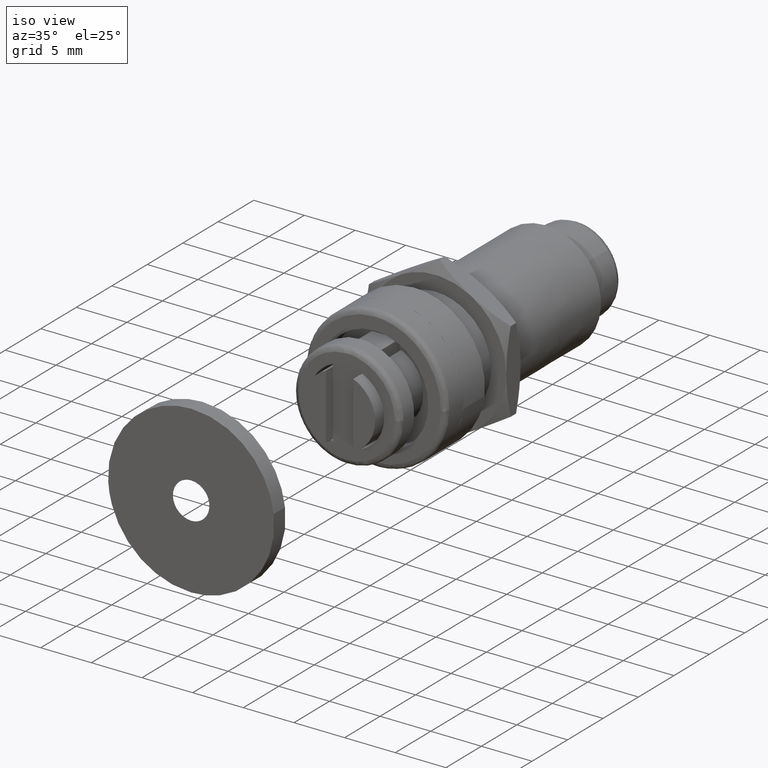
[diagram: clean part render]
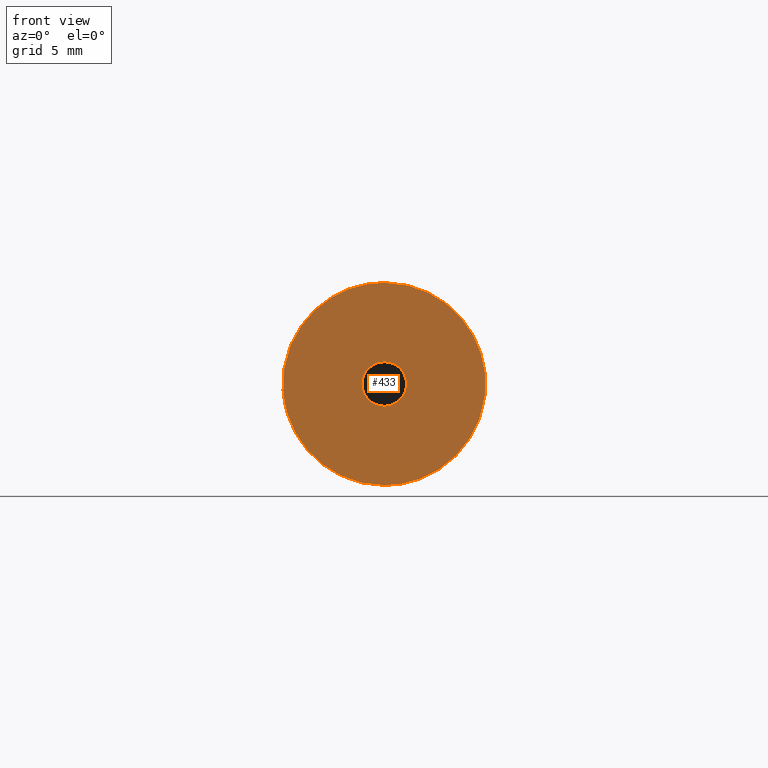
[diagram: tour spotlight — one face highlighted and labeled with its STEP entity id]
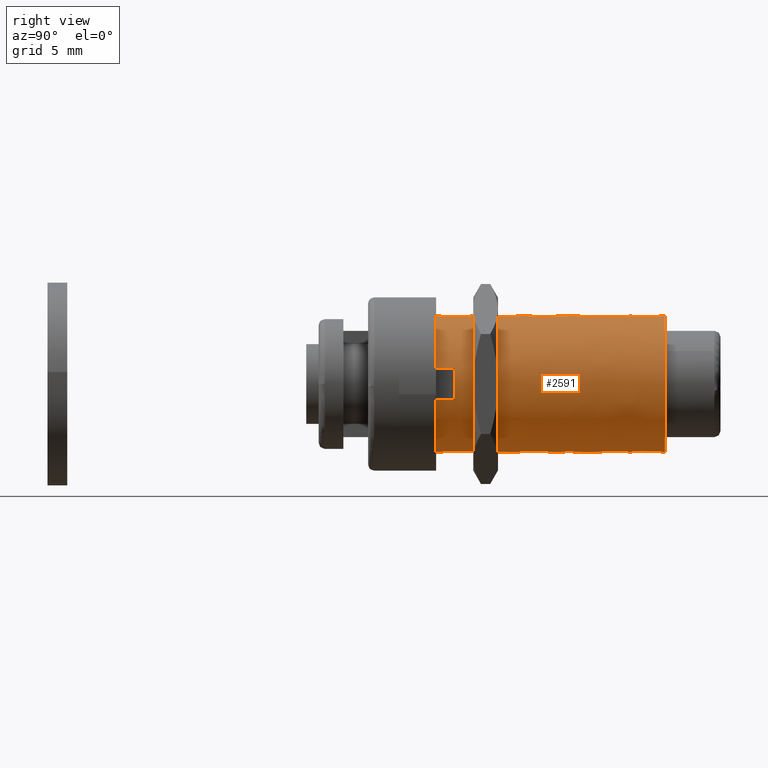
[diagram: tour spotlight — one face highlighted and labeled with its STEP entity id]
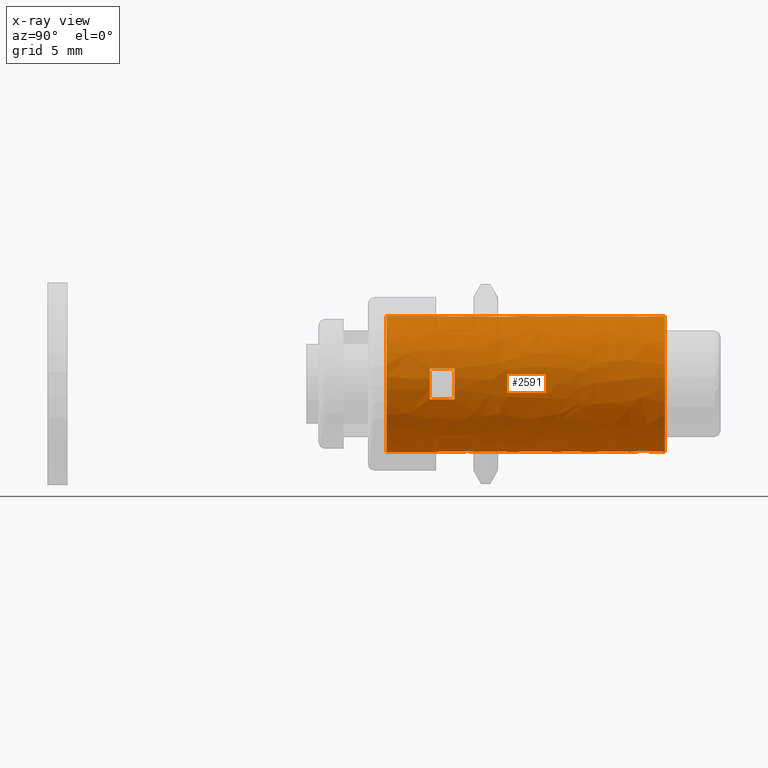
[diagram: x-ray of the same camera — body ghosted, this tour face saturated]
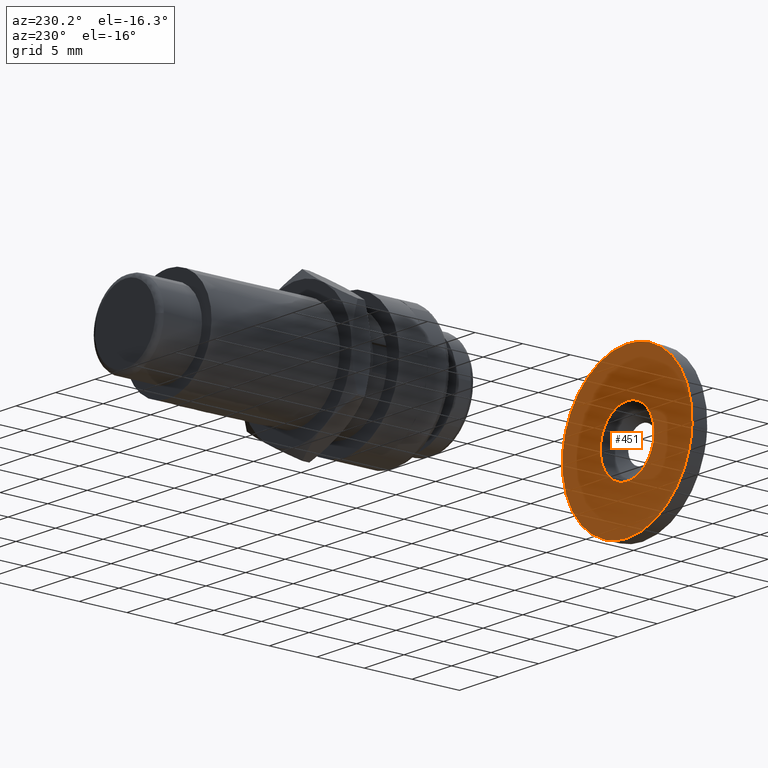
[diagram: tour spotlight — one face highlighted and labeled with its STEP entity id]
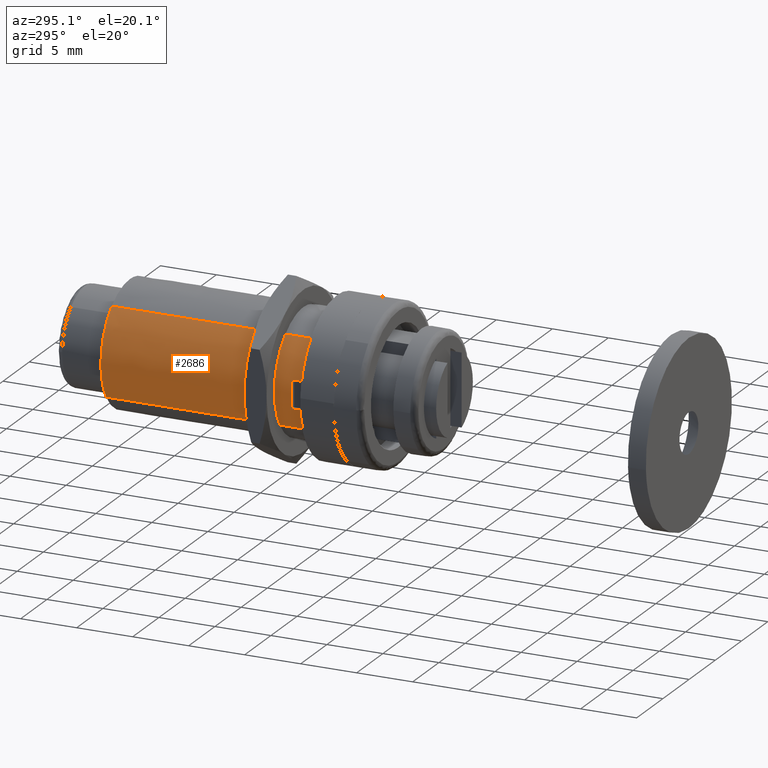
[diagram: tour spotlight — one face highlighted and labeled with its STEP entity id]
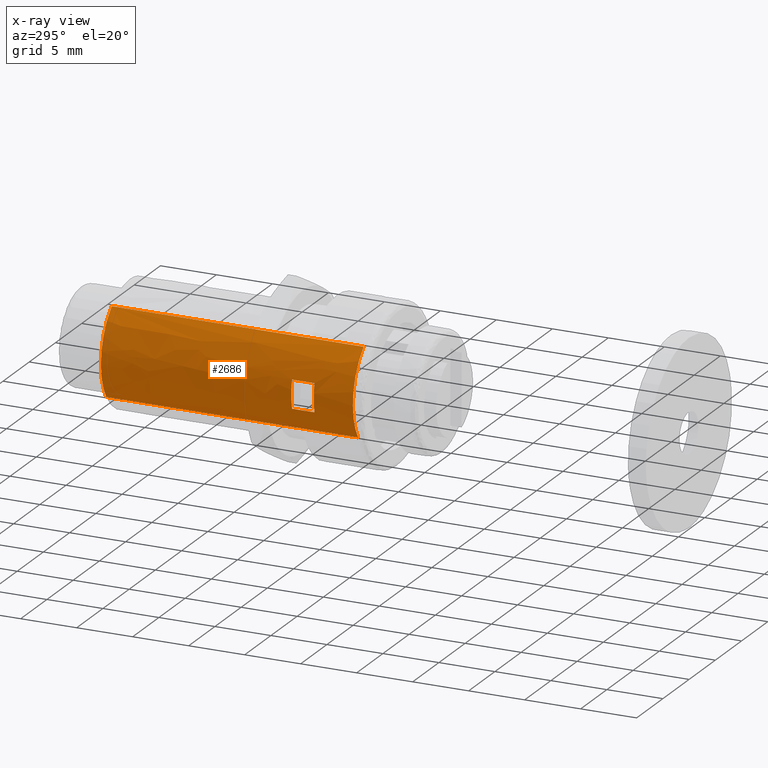
[diagram: x-ray of the same camera — body ghosted, this tour face saturated]
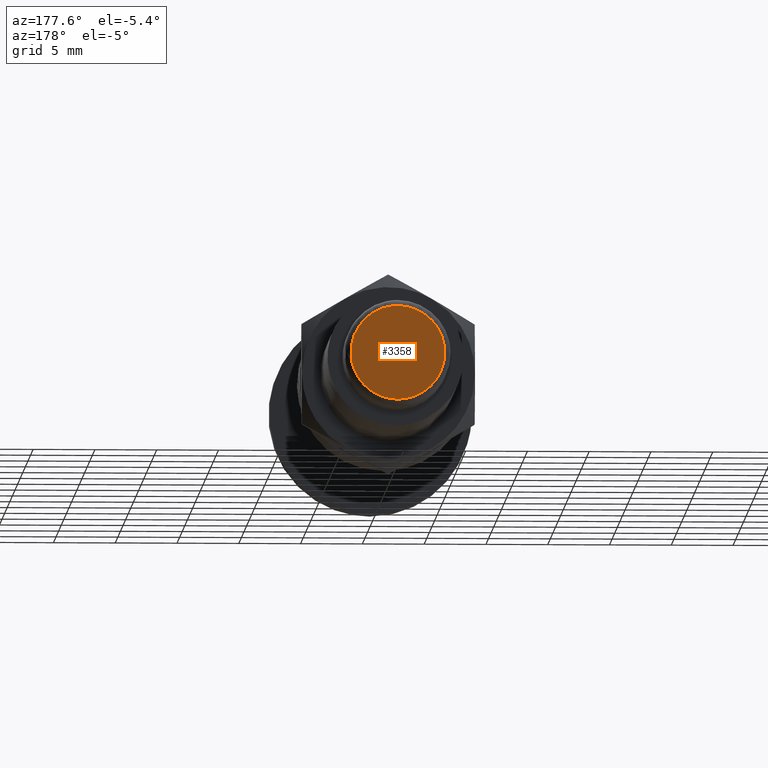
[diagram: tour spotlight — one face highlighted and labeled with its STEP entity id]
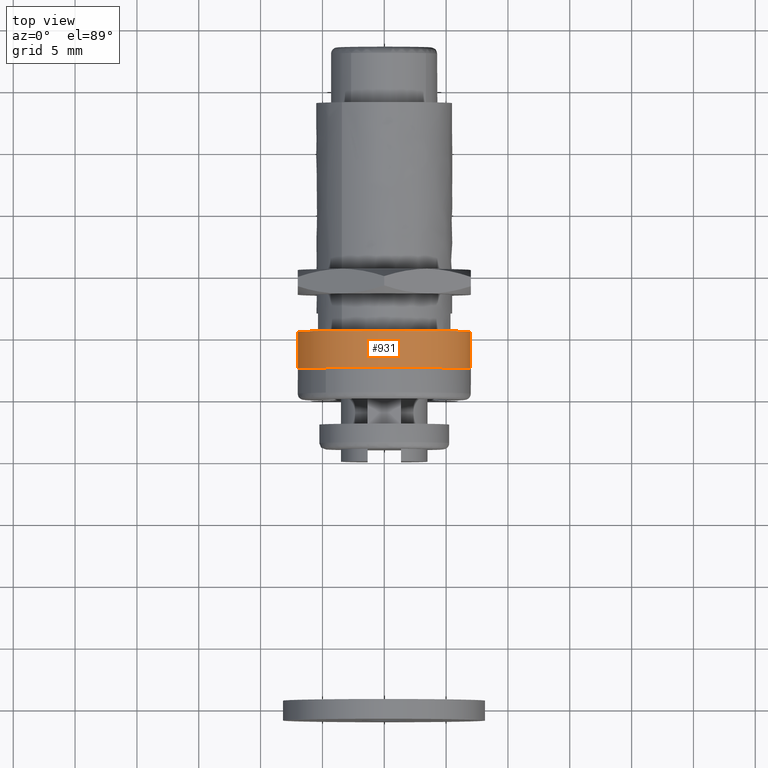
[diagram: tour spotlight — one face highlighted and labeled with its STEP entity id]
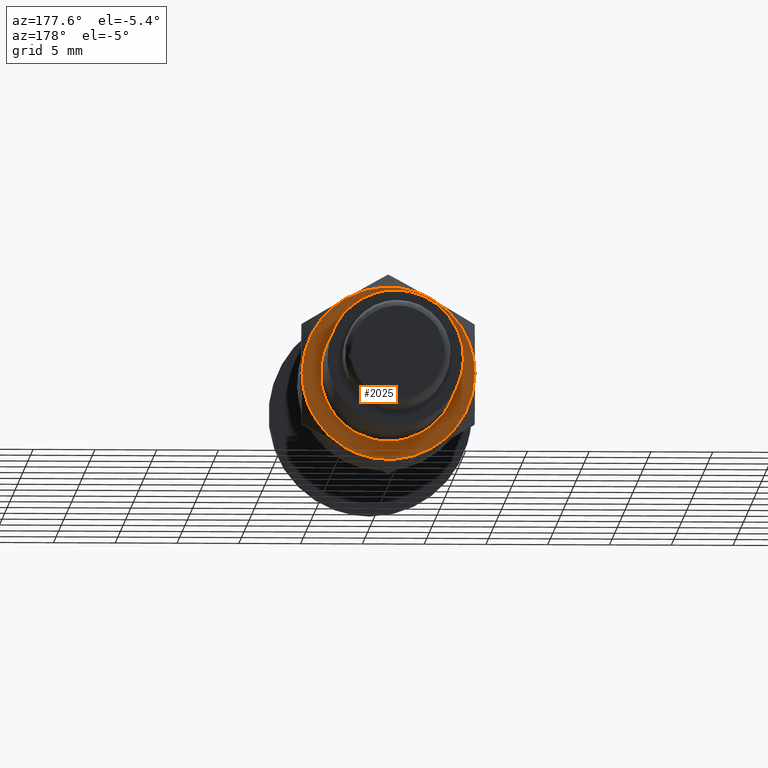
[diagram: tour spotlight — one face highlighted and labeled with its STEP entity id]
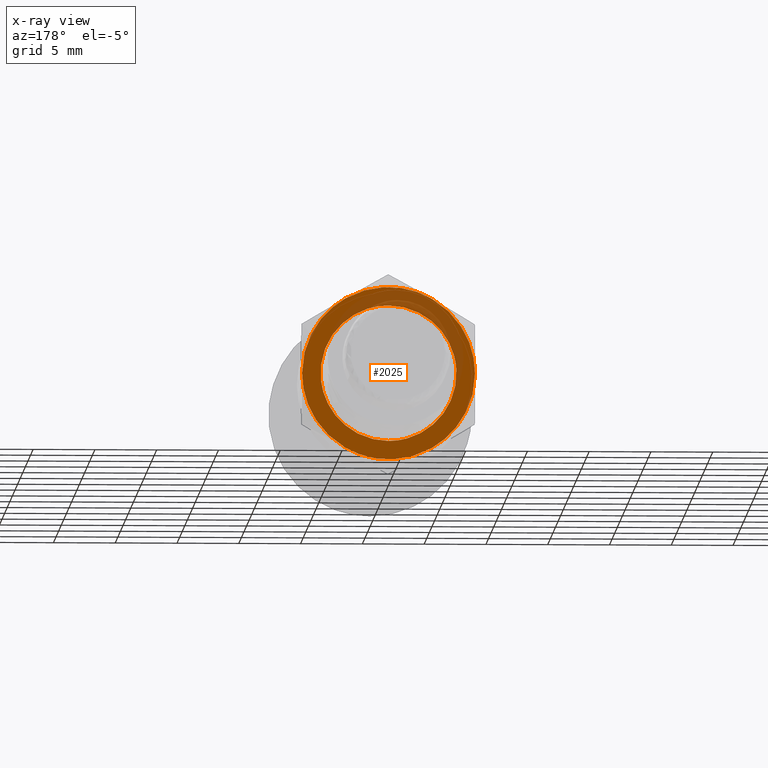
[diagram: x-ray of the same camera — body ghosted, this tour face saturated]
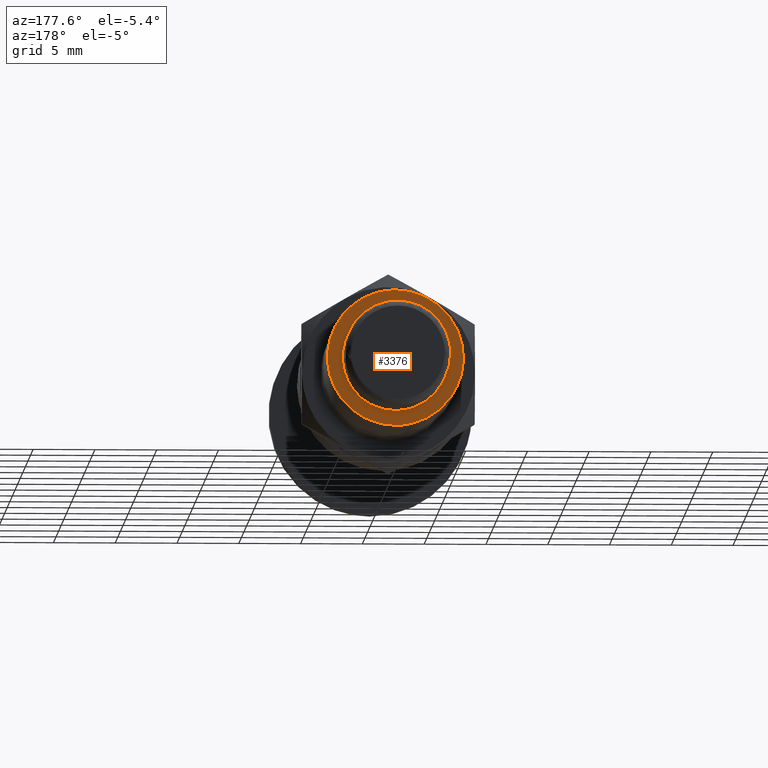
[diagram: tour spotlight — one face highlighted and labeled with its STEP entity id]
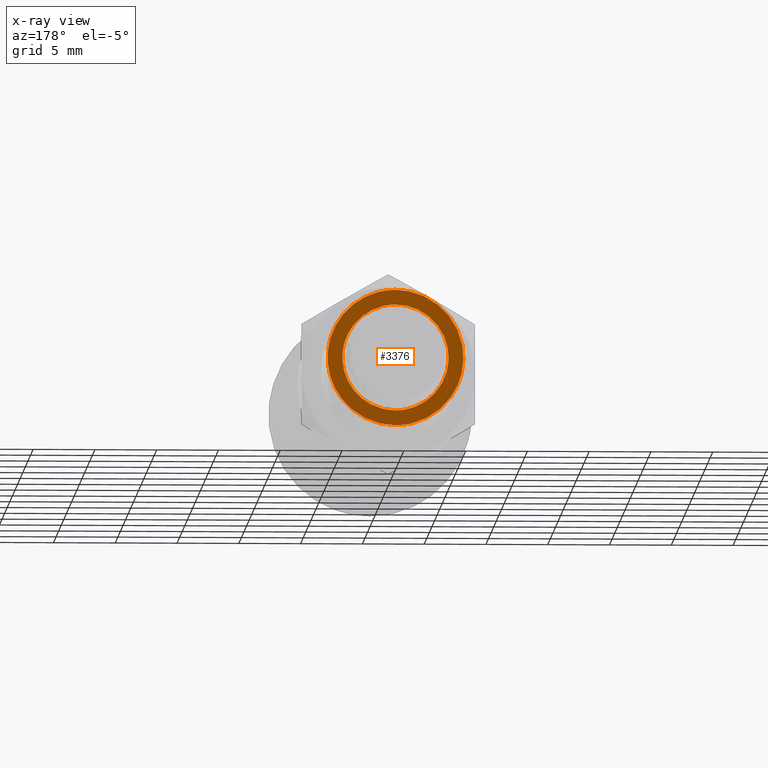
[diagram: x-ray of the same camera — body ghosted, this tour face saturated]
A machine part: a face-by-face anatomy tour. The part has 91 B-rep faces; the first image is the clean iso view, then the 8 largest visible faces are spotlighted one at a time (largest first), each with its STEP entity span.

Face 1 — front view, entity #433. In plain terms, the highlighted face is a freeform B-spline surface patch.
Definition (entity closure, byte-faithful):
#66=CARTESIAN_POINT('',(1.787417147460559,-34.072822825662101,-0.212461623067035));
#67=VERTEX_POINT('',#66);
#68=CARTESIAN_POINT('',(0.0,-34.072822825575336,1.799999999999997));
#69=VERTEX_POINT('',#68);
#70=CARTESIAN_POINT('',(1.787417147460560,-34.072822825662101,-0.212461623067035));
#71=CARTESIAN_POINT('',(1.800000000000000,-34.072822825575344,-0.106603416055200));
#72=CARTESIAN_POINT('',(1.800000000000000,-34.072822825575336,-3.330669E-015));
#73=CARTESIAN_POINT('',(1.800000000000001,-34.072822825575336,1.799999999999997));
#74=CARTESIAN_POINT('',(0.0,-34.072822825575336,1.799999999999997));
#82=(BOUNDED_CURVE()B_SPLINE_CURVE(2,(#70,#71,#72,#73,#74),.UNSPECIFIED.,.F.,.U.)B_SPLINE_CURVE_WITH_KNOTS((3,2,3),(0.229562473388070,0.250000000000000,0.500000000000000),.UNSPECIFIED.)CURVE()GEOMETRIC_REPRESENTATION_ITEM()RATIONAL_B_SPLINE_CURVE((0.956026753937835,0.976055948184185,1.0,0.707106781186547,1.0))REPRESENTATION_ITEM(''));
#83=EDGE_CURVE('',#67,#69,#82,.T.);
#124=CARTESIAN_POINT('',(-1.796642637164427,-34.072822825584687,0.109887371233050));
#125=VERTEX_POINT('',#124);
#131=CARTESIAN_POINT('',(0.0,-34.072822825575336,1.799999999999997));
#132=CARTESIAN_POINT('',(-1.693270920298555,-34.072822825575344,1.799999999999996));
#133=CARTESIAN_POINT('',(-1.796642637164427,-34.072822825584701,0.109887371233050));
#141=(BOUNDED_CURVE()B_SPLINE_CURVE(2,(#131,#132,#133),.UNSPECIFIED.,.F.,.U.)B_SPLINE_CURVE_WITH_KNOTS((3,3),(0.500000000000000,0.739332962228573),.UNSPECIFIED.)CURVE()GEOMETRIC_REPRESENTATION_ITEM()RATIONAL_B_SPLINE_CURVE((1.0,0.719603993298859,0.976072041644494))REPRESENTATION_ITEM(''));
#142=EDGE_CURVE('',#69,#125,#141,.T.);
#165=CARTESIAN_POINT('',(0.0,-34.072822825575336,-1.800000000000003));
#166=VERTEX_POINT('',#165);
#167=CARTESIAN_POINT('',(0.0,-34.072822825575336,-1.800000000000003));
#168=CARTESIAN_POINT('',(1.598714145497159,-34.072822825575344,-1.800000000000004));
#169=CARTESIAN_POINT('',(1.787417147460559,-34.072822825662101,-0.212461623067035));
#177=(BOUNDED_CURVE()B_SPLINE_CURVE(2,(#167,#168,#169),.UNSPECIFIED.,.F.,.U.)B_SPLINE_CURVE_WITH_KNOTS((3,3),(0.0,0.229562473388070),.UNSPECIFIED.)CURVE()GEOMETRIC_REPRESENTATION_ITEM()RATIONAL_B_SPLINE_CURVE((1.0,0.731050833002362,0.956026753937836))REPRESENTATION_ITEM(''));
#178=EDGE_CURVE('',#166,#67,#177,.T.);
#180=CARTESIAN_POINT('',(-1.796642637164427,-34.072822825584694,0.109887371233050));
#181=CARTESIAN_POINT('',(-1.800000000000000,-34.072822825575336,0.054994974007392));
#182=CARTESIAN_POINT('',(-1.800000000000000,-34.072822825575336,-3.330669E-015));
#183=CARTESIAN_POINT('',(-1.800000000000001,-34.072822825575336,-1.800000000000004));
#184=CARTESIAN_POINT('',(0.0,-34.072822825575336,-1.800000000000003));
#192=(BOUNDED_CURVE()B_SPLINE_CURVE(2,(#180,#181,#182,#183,#184),.UNSPECIFIED.,.F.,.U.)B_SPLINE_CURVE_WITH_KNOTS((3,2,3),(0.739332962228573,0.750000000000000,1.0),.UNSPECIFIED.)CURVE()GEOMETRIC_REPRESENTATION_ITEM()RATIONAL_B_SPLINE_CURVE((0.976072041644493,0.987502787887688,1.0,0.707106781186547,1.0))REPRESENTATION_ITEM(''));
#193=EDGE_CURVE('',#125,#166,#192,.T.);
#252=CARTESIAN_POINT('',(8.142676323732250,-34.072822825574740,-0.967870387416733));
#253=VERTEX_POINT('',#252);
#254=CARTESIAN_POINT('',(0.0,-34.072822825575336,8.199996999999996));
#255=VERTEX_POINT('',#254);
#256=CARTESIAN_POINT('',(8.142676323732250,-34.072822825574740,-0.967870387416733));
#257=CARTESIAN_POINT('',(8.199997000000002,-34.072822825575351,-0.485632559373497));
#258=CARTESIAN_POINT('',(8.199997000000000,-34.072822825575336,-3.330669E-015));
#259=CARTESIAN_POINT('',(8.199997000000000,-34.072822825575344,8.199996999999996));
#260=CARTESIAN_POINT('',(0.0,-34.072822825575336,8.199996999999996));
#268=(BOUNDED_CURVE()B_SPLINE_CURVE(2,(#256,#257,#258,#259,#260),.UNSPECIFIED.,.F.,.U.)B_SPLINE_CURVE_WITH_KNOTS((3,2,3),(0.229562680708376,0.250000000000000,0.500000000000000),.UNSPECIFIED.)CURVE()GEOMETRIC_REPRESENTATION_ITEM()RATIONAL_B_SPLINE_CURVE((0.956027160294523,0.976056191075033,1.0,0.707106781186548,1.0))REPRESENTATION_ITEM(''));
#269=EDGE_CURVE('',#253,#255,#268,.T.);
#271=CARTESIAN_POINT('',(-8.184703061401997,-34.072822825576033,0.500586252858546));
#272=VERTEX_POINT('',#271);
#273=CARTESIAN_POINT('',(0.0,-34.072822825575336,8.199996999999996));
#274=CARTESIAN_POINT('',(-7.713797868367078,-34.072822825575344,8.199996999999996));
#275=CARTESIAN_POINT('',(-8.184703061401997,-34.072822825576026,0.500586252858546));
#283=(BOUNDED_CURVE()B_SPLINE_CURVE(2,(#273,#274,#275),.UNSPECIFIED.,.F.,.U.)B_SPLINE_CURVE_WITH_KNOTS((3,3),(0.500000000000000,0.739333206539662),.UNSPECIFIED.)CURVE()GEOMETRIC_REPRESENTATION_ITEM()RATIONAL_B_SPLINE_CURVE((1.0,0.719603707070614,0.976072565250223))REPRESENTATION_ITEM(''));
#284=EDGE_CURVE('',#255,#272,#283,.T.);
#351=CARTESIAN_POINT('',(0.0,-34.072822825575336,-8.199997000000003));
#352=VERTEX_POINT('',#351);
#353=CARTESIAN_POINT('',(0.0,-34.072822825575336,-8.199997000000003));
#354=CARTESIAN_POINT('',(7.283037439902848,-34.072822825575351,-8.199997000000002));
#355=CARTESIAN_POINT('',(8.142676323732250,-34.072822825574740,-0.967870387416733));
#363=(BOUNDED_CURVE()B_SPLINE_CURVE(2,(#353,#354,#355),.UNSPECIFIED.,.F.,.U.)B_SPLINE_CURVE_WITH_KNOTS((3,3),(0.0,0.229562680708376),.UNSPECIFIED.)CURVE()GEOMETRIC_REPRESENTATION_ITEM()RATIONAL_B_SPLINE_CURVE((1.0,0.731050590111515,0.956027160294523))REPRESENTATION_ITEM(''));
#364=EDGE_CURVE('',#352,#253,#363,.T.);
#398=CARTESIAN_POINT('',(-8.184703061401997,-34.072822825576026,0.500586252858546));
#399=CARTESIAN_POINT('',(-8.199997000000000,-34.072822825575358,0.250526757053869));
#400=CARTESIAN_POINT('',(-8.199997000000000,-34.072822825575336,-3.330669E-015));
#401=CARTESIAN_POINT('',(-8.199997000000000,-34.072822825575344,-8.199997000000003));
#402=CARTESIAN_POINT('',(0.0,-34.072822825575336,-8.199997000000003));
#410=(BOUNDED_CURVE()B_SPLINE_CURVE(2,(#398,#399,#400,#401,#402),.UNSPECIFIED.,.F.,.U.)B_SPLINE_CURVE_WITH_KNOTS((3,2,3),(0.739333206539662,0.750000000000000,1.0),.UNSPECIFIED.)CURVE()GEOMETRIC_REPRESENTATION_ITEM()RATIONAL_B_SPLINE_CURVE((0.976072565250223,0.987503074115933,1.0,0.707106781186548,1.0))REPRESENTATION_ITEM(''));
#411=EDGE_CURVE('',#272,#352,#410,.T.);
#416=CARTESIAN_POINT('',(-9.018977762273112,-34.072822825575336,9.019176668513625));
#417=CARTESIAN_POINT('',(-9.018977762273112,-34.072822825575336,-9.019177108395748));
#418=CARTESIAN_POINT('',(9.019028788598741,-34.072822825575336,9.019176668513625));
#419=CARTESIAN_POINT('',(9.019028788598741,-34.072822825575336,-9.019177108395748));
#420=B_SPLINE_SURFACE_WITH_KNOTS('',1,1,((#416,#418),(#417,#419)),.UNSPECIFIED.,.F.,.F.,.U.,(2,2),(2,2),(0.0,18.038353776909378),(0.0,18.038006550871849),.UNSPECIFIED.);
#421=ORIENTED_EDGE('',*,*,#411,.F.);
#422=ORIENTED_EDGE('',*,*,#284,.F.);
#423=ORIENTED_EDGE('',*,*,#269,.F.);
#424=ORIENTED_EDGE('',*,*,#364,.F.);
#425=EDGE_LOOP('',(#421,#422,#423,#424));
#426=FACE_OUTER_BOUND('',#425,.T.);
#427=ORIENTED_EDGE('',*,*,#142,.T.);
#428=ORIENTED_EDGE('',*,*,#193,.T.);
#429=ORIENTED_EDGE('',*,*,#178,.T.);
#430=ORIENTED_EDGE('',*,*,#83,.T.);
#431=EDGE_LOOP('',(#427,#428,#429,#430));
#432=FACE_BOUND('',#431,.T.);
#433=ADVANCED_FACE('',(#426,#432),#420,.F.);

Face 2 — right view, entity #2591. An x-ray twin of the same camera follows (body ghosted, this face saturated) — the face is partly hidden behind the body. In plain terms, the highlighted face is a freeform B-spline surface patch.
Definition (entity closure, byte-faithful):
#2409=CARTESIAN_POINT('',(-4.493116155956434,24.562499999999702,-3.172050946798186));
#2410=CARTESIAN_POINT('',(-4.402333420664330,24.562499999999694,-3.300642000808398));
#2411=CARTESIAN_POINT('',(-4.304344862688275,24.562499999999691,-3.423830501506908));
#2412=CARTESIAN_POINT('',(-0.880514361181369,24.562499999999694,-7.728175364195182));
#2413=CARTESIAN_POINT('',(3.423830501506906,24.562499999999691,-4.304344862688277));
#2414=CARTESIAN_POINT('',(7.728175364195181,24.562499999999694,-0.880514361181371));
#2415=CARTESIAN_POINT('',(4.304344862688275,24.562499999999691,3.423830501506905));
#2416=CARTESIAN_POINT('',(0.880514361181369,24.562499999999694,7.728175364195181));
#2417=CARTESIAN_POINT('',(-3.423830501506906,24.562499999999691,4.304344862688273));
#2418=CARTESIAN_POINT('',(-4.493116155956434,0.923437500000006,-3.172050946798186));
#2419=CARTESIAN_POINT('',(-4.402333420664330,0.923437500000006,-3.300642000808398));
#2420=CARTESIAN_POINT('',(-4.304344862688275,0.923437500000006,-3.423830501506908));
#2421=CARTESIAN_POINT('',(-0.880514361181369,0.923437500000006,-7.728175364195182));
#2422=CARTESIAN_POINT('',(3.423830501506906,0.923437500000006,-4.304344862688277));
#2423=CARTESIAN_POINT('',(7.728175364195181,0.923437500000006,-0.880514361181371));
#2424=CARTESIAN_POINT('',(4.304344862688275,0.923437500000006,3.423830501506905));
#2425=CARTESIAN_POINT('',(0.880514361181369,0.923437500000006,7.728175364195181));
#2426=CARTESIAN_POINT('',(-3.423830501506906,0.923437500000006,4.304344862688273));
#2434=(BOUNDED_SURFACE()B_SPLINE_SURFACE(2,1,((#2409,#2418),(#2410,#2419),(#2411,#2420),(#2412,#2421),(#2413,#2422),(#2414,#2423),(#2415,#2424),(#2416,#2425),(#2417,#2426)),.UNSPECIFIED.,.F.,.F.,.U.)B_SPLINE_SURFACE_WITH_KNOTS((3,2,2,2,3),(2,2),(0.0,0.364507934888324,9.477206307096413,18.589904679304500,27.702603051512590),(0.0,23.639062499999699),.UNSPECIFIED.)GEOMETRIC_REPRESENTATION_ITEM()RATIONAL_B_SPLINE_SURFACE(((0.977505800795127,0.977505800795127),(0.988284271247462,0.988284271247462),(1.0,1.0),(0.707106781186548,0.707106781186548),(1.0,1.0),(0.707106781186548,0.707106781186548),(1.0,1.0),(0.707106781186548,0.707106781186548),(1.0,1.0)))REPRESENTATION_ITEM('')SURFACE());
#2435=CARTESIAN_POINT('',(-4.493118421925256,23.999999999999730,-3.172047737115642));
#2436=VERTEX_POINT('',#2435);
#2437=CARTESIAN_POINT('',(0.0,23.999999999999702,-5.500000000000002));
#2438=VERTEX_POINT('',#2437);
#2439=CARTESIAN_POINT('',(-4.493118421925256,23.999999999999730,-3.172047737115642));
#2440=CARTESIAN_POINT('',(-2.849632759149487,23.999999999999698,-5.500000000000004));
#2441=CARTESIAN_POINT('',(0.0,23.999999999999702,-5.500000000000002));
#2449=(BOUNDED_CURVE()B_SPLINE_CURVE(2,(#2439,#2440,#2441),.UNSPECIFIED.,.F.,.U.)B_SPLINE_CURVE_WITH_KNOTS((3,3),(0.849185096870239,1.0),.UNSPECIFIED.)CURVE()GEOMETRIC_REPRESENTATION_ITEM()RATIONAL_B_SPLINE_CURVE((0.859799366354773,0.823309350309142,1.0))REPRESENTATION_ITEM(''));
#2450=EDGE_CURVE('',#2436,#2438,#2449,.T.);
#2451=ORIENTED_EDGE('',*,*,#2450,.T.);
#2452=CARTESIAN_POINT('',(0.0,23.999999999999702,5.499999999999998));
#2453=VERTEX_POINT('',#2452);
#2454=CARTESIAN_POINT('',(0.0,23.999999999999702,-5.500000000000002));
#2455=CARTESIAN_POINT('',(5.500000000000001,23.999999999999702,-5.500000000000002));
#2456=CARTESIAN_POINT('',(5.500000000000000,23.999999999999702,-1.653219E-015));
#2457=CARTESIAN_POINT('',(5.500000000000001,23.999999999999702,5.499999999999997));
#2458=CARTESIAN_POINT('',(0.0,23.999999999999702,5.499999999999998));
#2466=(BOUNDED_CURVE()B_SPLINE_CURVE(2,(#2454,#2455,#2456,#2457,#2458),.UNSPECIFIED.,.F.,.U.)B_SPLINE_CURVE_WITH_KNOTS((3,2,3),(0.0,0.250000000000000,0.500000000000000),.UNSPECIFIED.)CURVE()GEOMETRIC_REPRESENTATION_ITEM()RATIONAL_B_SPLINE_CURVE((1.0,0.707106781186548,1.0,0.707106781186548,1.0))REPRESENTATION_ITEM(''));
#2467=EDGE_CURVE('',#2438,#2453,#2466,.T.);
#2468=ORIENTED_EDGE('',*,*,#2467,.T.);
#2469=CARTESIAN_POINT('',(-3.423829232924670,23.999999999999709,4.304345871763537));
#2470=VERTEX_POINT('',#2469);
#2471=CARTESIAN_POINT('',(0.0,23.999999999999702,5.499999999999998));
#2472=CARTESIAN_POINT('',(-1.920685074495332,23.999999999999709,5.499999999999998));
#2473=CARTESIAN_POINT('',(-3.423829232924671,23.999999999999716,4.304345871763537));
#2481=(BOUNDED_CURVE()B_SPLINE_CURVE(2,(#2471,#2472,#2473),.UNSPECIFIED.,.F.,.U.)B_SPLINE_CURVE_WITH_KNOTS((3,3),(0.500000000000000,0.607863832778051),.UNSPECIFIED.)CURVE()GEOMETRIC_REPRESENTATION_ITEM()RATIONAL_B_SPLINE_CURVE((1.0,0.873629659296323,0.856305632974780))REPRESENTATION_ITEM(''));
#2482=EDGE_CURVE('',#2453,#2470,#2481,.T.);
#2483=ORIENTED_EDGE('',*,*,#2482,.T.);
#2484=CARTESIAN_POINT('',(-3.423829248213445,1.500000000000000,4.304345859602313));
#2485=VERTEX_POINT('',#2484);
#2486=CARTESIAN_POINT('',(-3.423829232924670,23.999999999999709,4.304345871763537));
#2487=CARTESIAN_POINT('',(-3.423829248213445,1.500000000000000,4.304345859602313));
#2488=QUASI_UNIFORM_CURVE('',1,(#2486,#2487),.UNSPECIFIED.,.F.,.U.);
#2489=EDGE_CURVE('',#2470,#2485,#2488,.T.);
#2490=ORIENTED_EDGE('',*,*,#2489,.T.);
#2491=CARTESIAN_POINT('',(0.0,1.500000000000000,5.499999999999998));
#2492=VERTEX_POINT('',#2491);
#2493=CARTESIAN_POINT('',(0.0,1.500000000000000,5.499999999999998));
#2494=CARTESIAN_POINT('',(-1.920685085454363,1.500000000000000,5.499999999999998));
#2495=CARTESIAN_POINT('',(-3.423829248213445,1.500000000000000,4.304345859602313));
#2503=(BOUNDED_CURVE()B_SPLINE_CURVE(2,(#2493,#2494,#2495),.UNSPECIFIED.,.F.,.U.)B_SPLINE_CURVE_WITH_KNOTS((3,3),(0.500000000000000,0.607863833315725),.UNSPECIFIED.)CURVE()GEOMETRIC_REPRESENTATION_ITEM()RATIONAL_B_SPLINE_CURVE((1.0,0.873629658666399,0.856305632802068))REPRESENTATION_ITEM(''));
#2504=EDGE_CURVE('',#2492,#2485,#2503,.T.);
#2505=ORIENTED_EDGE('',*,*,#2504,.F.);
#2506=CARTESIAN_POINT('',(0.0,1.500000000000000,-5.500000000000002));
#2507=VERTEX_POINT('',#2506);
#2508=CARTESIAN_POINT('',(0.0,1.500000000000000,-5.500000000000002));
#2509=CARTESIAN_POINT('',(5.500000000000001,1.500000000000000,-5.500000000000002));
#2510=CARTESIAN_POINT('',(5.500000000000000,1.500000000000000,-1.653219E-015));
#2511=CARTESIAN_POINT('',(5.500000000000001,1.500000000000000,5.499999999999997));
#2512=CARTESIAN_POINT('',(0.0,1.500000000000000,5.499999999999998));
#2520=(BOUNDED_CURVE()B_SPLINE_CURVE(2,(#2508,#2509,#2510,#2511,#2512),.UNSPECIFIED.,.F.,.U.)B_SPLINE_CURVE_WITH_KNOTS((3,2,3),(0.0,0.250000000000000,0.500000000000000),.UNSPECIFIED.)CURVE()GEOMETRIC_REPRESENTATION_ITEM()RATIONAL_B_SPLINE_CURVE((1.0,0.707106781186548,1.0,0.707106781186548,1.0))REPRESENTATION_ITEM(''));
#2521=EDGE_CURVE('',#2507,#2492,#2520,.T.);
#2522=ORIENTED_EDGE('',*,*,#2521,.F.);
#2523=CARTESIAN_POINT('',(-4.493118394615143,1.500000000000000,-3.172047775799723));
#2524=VERTEX_POINT('',#2523);
#2525=CARTESIAN_POINT('',(-4.493118394615143,1.500000000000000,-3.172047775799722));
#2526=CARTESIAN_POINT('',(-2.849632729117234,1.500000000000000,-5.500000000000002));
#2527=CARTESIAN_POINT('',(0.0,1.500000000000000,-5.500000000000002));
#2535=(BOUNDED_CURVE()B_SPLINE_CURVE(2,(#2525,#2526,#2527),.UNSPECIFIED.,.F.,.U.)B_SPLINE_CURVE_WITH_KNOTS((3,3),(0.849185098178838,1.0),.UNSPECIFIED.)CURVE()GEOMETRIC_REPRESENTATION_ITEM()RATIONAL_B_SPLINE_CURVE((0.859799365721537,0.823309351842260,1.0))REPRESENTATION_ITEM(''));
#2536=EDGE_CURVE('',#2524,#2507,#2535,.T.);
#2537=ORIENTED_EDGE('',*,*,#2536,.F.);
#2538=CARTESIAN_POINT('',(-4.493118421925256,23.999999999999730,-3.172047737115642));
#2539=CARTESIAN_POINT('',(-4.493118394615143,1.500000000000000,-3.172047775799723));
#2540=QUASI_UNIFORM_CURVE('',1,(#2538,#2539),.UNSPECIFIED.,.F.,.U.);
#2541=EDGE_CURVE('',#2436,#2524,#2540,.T.);
#2542=ORIENTED_EDGE('',*,*,#2541,.F.);
#2543=EDGE_LOOP('',(#2451,#2468,#2483,#2490,#2505,#2522,#2537,#2542));
#2544=FACE_OUTER_BOUND('',#2543,.T.);
#2545=CARTESIAN_POINT('',(5.356071321407140,5.0,1.250000000000000));
#2546=VERTEX_POINT('',#2545);
#2547=CARTESIAN_POINT('',(5.356071321407140,7.0,1.250000000000000));
#2548=VERTEX_POINT('',#2547);
#2549=CARTESIAN_POINT('',(5.356071321407140,5.0,1.250000000000000));
#2550=CARTESIAN_POINT('',(5.356071321407140,7.0,1.250000000000000));
#2551=QUASI_UNIFORM_CURVE('',1,(#2549,#2550),.UNSPECIFIED.,.F.,.U.);
#2552=EDGE_CURVE('',#2546,#2548,#2551,.T.);
#2553=ORIENTED_EDGE('',*,*,#2552,.T.);
#2554=CARTESIAN_POINT('',(5.356071321407140,7.0,-1.250000000000000));
#2555=VERTEX_POINT('',#2554);
#2556=CARTESIAN_POINT('',(5.356071321407137,7.0,1.250000000000001));
#2557=CARTESIAN_POINT('',(5.647796338912973,7.0,1.165707E-015));
#2558=CARTESIAN_POINT('',(5.356071321407138,7.0,-1.249999999999998));
#2566=(BOUNDED_CURVE()B_SPLINE_CURVE(2,(#2556,#2557,#2558),.UNSPECIFIED.,.F.,.U.)CURVE()GEOMETRIC_REPRESENTATION_ITEM()QUASI_UNIFORM_CURVE()RATIONAL_B_SPLINE_CURVE((1.0,0.973831149346752,1.0))REPRESENTATION_ITEM(''));
#2567=EDGE_CURVE('',#2548,#2555,#2566,.T.);
#2568=ORIENTED_EDGE('',*,*,#2567,.T.);
#2569=CARTESIAN_POINT('',(5.356071321407140,5.0,-1.250000000000000));
#2570=VERTEX_POINT('',#2569);
#2571=CARTESIAN_POINT('',(5.356071321407140,7.0,-1.250000000000000));
#2572=CARTESIAN_POINT('',(5.356071321407140,5.0,-1.250000000000000));
#2573=QUASI_UNIFORM_CURVE('',1,(#2571,#2572),.UNSPECIFIED.,.F.,.U.);
#2574=EDGE_CURVE('',#2555,#2570,#2573,.T.);
#2575=ORIENTED_EDGE('',*,*,#2574,.T.);
#2576=CARTESIAN_POINT('',(5.356071321407137,5.0,-1.250000000000000));
#2577=CARTESIAN_POINT('',(5.647796338912973,5.0,-5.690164E-016));
#2578=CARTESIAN_POINT('',(5.356071321407137,5.0,1.249999999999999));
#2586=(BOUNDED_CURVE()B_SPLINE_CURVE(2,(#2576,#2577,#2578),.UNSPECIFIED.,.F.,.U.)CURVE()GEOMETRIC_REPRESENTATION_ITEM()QUASI_UNIFORM_CURVE()RATIONAL_B_SPLINE_CURVE((1.0,0.973831149346752,1.0))REPRESENTATION_ITEM(''));
#2587=EDGE_CURVE('',#2570,#2546,#2586,.T.);
#2588=ORIENTED_EDGE('',*,*,#2587,.T.);
#2589=EDGE_LOOP('',(#2553,#2568,#2575,#2588));
#2590=FACE_BOUND('',#2589,.T.);
#2591=ADVANCED_FACE('',(#2544,#2590),#2434,.T.);

Face 3 — auxiliary view, entity #451. In plain terms, the highlighted face is a freeform B-spline surface patch.
Definition (entity closure, byte-faithful):
#85=CARTESIAN_POINT('',(3.376232389638950,-35.672828825610857,-0.401316398112888));
#86=VERTEX_POINT('',#85);
#92=CARTESIAN_POINT('',(0.0,-35.672828825575351,3.399999999999996));
#93=VERTEX_POINT('',#92);
#94=CARTESIAN_POINT('',(3.376232389638950,-35.672828825610864,-0.401316398112888));
#95=CARTESIAN_POINT('',(3.400000000000000,-35.672828825575351,-0.201362007095127));
#96=CARTESIAN_POINT('',(3.400000000000000,-35.672828825575351,-3.330669E-015));
#97=CARTESIAN_POINT('',(3.400000000000001,-35.672828825575358,3.399999999999997));
#98=CARTESIAN_POINT('',(0.0,-35.672828825575351,3.399999999999996));
#106=(BOUNDED_CURVE()B_SPLINE_CURVE(2,(#94,#95,#96,#97,#98),.UNSPECIFIED.,.F.,.U.)B_SPLINE_CURVE_WITH_KNOTS((3,2,3),(0.229562473488042,0.250000000000000,0.500000000000000),.UNSPECIFIED.)CURVE()GEOMETRIC_REPRESENTATION_ITEM()RATIONAL_B_SPLINE_CURVE((0.956026754133783,0.976055948301309,1.0,0.707106781186548,1.0))REPRESENTATION_ITEM(''));
#107=EDGE_CURVE('',#86,#93,#106,.T.);
#109=CARTESIAN_POINT('',(-3.393658314634448,-35.672828825575543,0.207565034419999));
#110=VERTEX_POINT('',#109);
#111=CARTESIAN_POINT('',(0.0,-35.672828825575351,3.399999999999996));
#112=CARTESIAN_POINT('',(-3.198400627476577,-35.672828825575344,3.399999999999997));
#113=CARTESIAN_POINT('',(-3.393658314634449,-35.672828825575543,0.207565034419999));
#121=(BOUNDED_CURVE()B_SPLINE_CURVE(2,(#111,#112,#113),.UNSPECIFIED.,.F.,.U.)B_SPLINE_CURVE_WITH_KNOTS((3,3),(0.500000000000000,0.739332962241818),.UNSPECIFIED.)CURVE()GEOMETRIC_REPRESENTATION_ITEM()RATIONAL_B_SPLINE_CURVE((1.0,0.719603993283341,0.976072041672880))REPRESENTATION_ITEM(''));
#122=EDGE_CURVE('',#93,#110,#121,.T.);
#196=CARTESIAN_POINT('',(0.0,-35.672828825575351,-3.400000000000004));
#197=VERTEX_POINT('',#196);
#198=CARTESIAN_POINT('',(-3.393658314634448,-35.672828825575536,0.207565034419999));
#199=CARTESIAN_POINT('',(-3.400000000000000,-35.672828825575358,0.103879395216680));
#200=CARTESIAN_POINT('',(-3.400000000000000,-35.672828825575351,-3.330669E-015));
#201=CARTESIAN_POINT('',(-3.400000000000001,-35.672828825575358,-3.400000000000003));
#202=CARTESIAN_POINT('',(0.0,-35.672828825575351,-3.400000000000004));
#210=(BOUNDED_CURVE()B_SPLINE_CURVE(2,(#198,#199,#200,#201,#202),.UNSPECIFIED.,.F.,.U.)B_SPLINE_CURVE_WITH_KNOTS((3,2,3),(0.739332962241818,0.750000000000000,1.0),.UNSPECIFIED.)CURVE()GEOMETRIC_REPRESENTATION_ITEM()RATIONAL_B_SPLINE_CURVE((0.976072041672880,0.987502787903206,1.0,0.707106781186548,1.0))REPRESENTATION_ITEM(''));
#211=EDGE_CURVE('',#110,#197,#210,.T.);
#213=CARTESIAN_POINT('',(0.0,-35.672828825575351,-3.400000000000004));
#214=CARTESIAN_POINT('',(3.019793387737965,-35.672828825575358,-3.400000000000004));
#215=CARTESIAN_POINT('',(3.376232389638951,-35.672828825610871,-0.401316398112888));
#223=(BOUNDED_CURVE()B_SPLINE_CURVE(2,(#213,#214,#215),.UNSPECIFIED.,.F.,.U.)B_SPLINE_CURVE_WITH_KNOTS((3,3),(0.0,0.229562473488041),.UNSPECIFIED.)CURVE()GEOMETRIC_REPRESENTATION_ITEM()RATIONAL_B_SPLINE_CURVE((1.0,0.731050832885239,0.956026754133783))REPRESENTATION_ITEM(''));
#224=EDGE_CURVE('',#197,#86,#223,.T.);
#286=CARTESIAN_POINT('',(-8.184703052873287,-35.672828825575351,0.500586392308189));
#287=VERTEX_POINT('',#286);
#293=CARTESIAN_POINT('',(0.0,-35.672828825575351,8.199996999999996));
#294=VERTEX_POINT('',#293);
#295=CARTESIAN_POINT('',(0.0,-35.672828825575351,8.199996999999996));
#296=CARTESIAN_POINT('',(-7.713797736695073,-35.672828825575365,8.199996999999996));
#297=CARTESIAN_POINT('',(-8.184703052873287,-35.672828825575344,0.500586392308189));
#305=(BOUNDED_CURVE()B_SPLINE_CURVE(2,(#295,#296,#297),.UNSPECIFIED.,.F.,.U.)B_SPLINE_CURVE_WITH_KNOTS((3,3),(0.500000000000000,0.739333203599837),.UNSPECIFIED.)CURVE()GEOMETRIC_REPRESENTATION_ITEM()RATIONAL_B_SPLINE_CURVE((1.0,0.719603710514834,0.976072558949604))REPRESENTATION_ITEM(''));
#306=EDGE_CURVE('',#294,#287,#305,.T.);
#308=CARTESIAN_POINT('',(8.142676309419214,-35.672828825575358,-0.967870507833284));
#309=VERTEX_POINT('',#308);
#310=CARTESIAN_POINT('',(8.142676309419214,-35.672828825575358,-0.967870507833284));
#311=CARTESIAN_POINT('',(8.199997000000000,-35.672828825575365,-0.485632620218265));
#312=CARTESIAN_POINT('',(8.199997000000000,-35.672828825575351,-3.330669E-015));
#313=CARTESIAN_POINT('',(8.199997000000000,-35.672828825575358,8.199996999999996));
#314=CARTESIAN_POINT('',(0.0,-35.672828825575351,8.199996999999996));
#322=(BOUNDED_CURVE()B_SPLINE_CURVE(2,(#310,#311,#312,#313,#314),.UNSPECIFIED.,.F.,.U.)B_SPLINE_CURVE_WITH_KNOTS((3,2,3),(0.229562678209101,0.250000000000000,0.500000000000000),.UNSPECIFIED.)CURVE()GEOMETRIC_REPRESENTATION_ITEM()RATIONAL_B_SPLINE_CURVE((0.956027155395830,0.976056188146949,1.0,0.707106781186548,1.0))REPRESENTATION_ITEM(''));
#323=EDGE_CURVE('',#309,#294,#322,.T.);
#367=CARTESIAN_POINT('',(0.0,-35.672828825575351,-8.199997000000003));
#368=VERTEX_POINT('',#367);
#369=CARTESIAN_POINT('',(0.0,-35.672828825575351,-8.199997000000003));
#370=CARTESIAN_POINT('',(7.283037331440748,-35.672828825575344,-8.199997000000003));
#371=CARTESIAN_POINT('',(8.142676309419214,-35.672828825575358,-0.967870507833284));
#379=(BOUNDED_CURVE()B_SPLINE_CURVE(2,(#369,#370,#371),.UNSPECIFIED.,.F.,.U.)B_SPLINE_CURVE_WITH_KNOTS((3,3),(0.0,0.229562678209101),.UNSPECIFIED.)CURVE()GEOMETRIC_REPRESENTATION_ITEM()RATIONAL_B_SPLINE_CURVE((1.0,0.731050593039599,0.956027155395830))REPRESENTATION_ITEM(''));
#380=EDGE_CURVE('',#368,#309,#379,.T.);
#382=CARTESIAN_POINT('',(-8.184703052873287,-35.672828825575344,0.500586392308189));
#383=CARTESIAN_POINT('',(-8.199997000000000,-35.672828825575358,0.250526826974176));
#384=CARTESIAN_POINT('',(-8.199997000000000,-35.672828825575351,-3.330669E-015));
#385=CARTESIAN_POINT('',(-8.199997000000000,-35.672828825575358,-8.199997000000003));
#386=CARTESIAN_POINT('',(0.0,-35.672828825575351,-8.199997000000003));
#394=(BOUNDED_CURVE()B_SPLINE_CURVE(2,(#382,#383,#384,#385,#386),.UNSPECIFIED.,.F.,.U.)B_SPLINE_CURVE_WITH_KNOTS((3,2,3),(0.739333203599837,0.750000000000000,1.0),.UNSPECIFIED.)CURVE()GEOMETRIC_REPRESENTATION_ITEM()RATIONAL_B_SPLINE_CURVE((0.976072558949604,0.987503070671714,1.0,0.707106781186548,1.0))REPRESENTATION_ITEM(''));
#395=EDGE_CURVE('',#287,#368,#394,.T.);
#434=CARTESIAN_POINT('',(-9.018977762273112,-35.672828825575351,-9.019176668513632));
#435=CARTESIAN_POINT('',(-9.018977762273112,-35.672828825575351,9.019177108395743));
#436=CARTESIAN_POINT('',(9.019028788598741,-35.672828825575351,-9.019176668513634));
#437=CARTESIAN_POINT('',(9.019028788598741,-35.672828825575351,9.019177108395743));
#438=B_SPLINE_SURFACE_WITH_KNOTS('',1,1,((#434,#436),(#435,#437)),.UNSPECIFIED.,.F.,.F.,.U.,(2,2),(2,2),(0.0,18.038353776909378),(0.0,18.038006550871849),.UNSPECIFIED.);
#439=ORIENTED_EDGE('',*,*,#380,.T.);
#440=ORIENTED_EDGE('',*,*,#323,.T.);
#441=ORIENTED_EDGE('',*,*,#306,.T.);
#442=ORIENTED_EDGE('',*,*,#395,.T.);
#443=EDGE_LOOP('',(#439,#440,#441,#442));
#444=FACE_OUTER_BOUND('',#443,.T.);
#445=ORIENTED_EDGE('',*,*,#122,.F.);
#446=ORIENTED_EDGE('',*,*,#107,.F.);
#447=ORIENTED_EDGE('',*,*,#224,.F.);
#448=ORIENTED_EDGE('',*,*,#211,.F.);
#449=EDGE_LOOP('',(#445,#446,#447,#448));
#450=FACE_BOUND('',#449,.T.);
#451=ADVANCED_FACE('',(#444,#450),#438,.F.);

Face 4 — auxiliary view, entity #2686. An x-ray twin of the same camera follows (body ghosted, this face saturated) — the face is partly hidden behind the body. In plain terms, the highlighted face is a freeform B-spline surface patch.
Definition (entity closure, byte-faithful):
#2435=CARTESIAN_POINT('',(-4.493118421925256,23.999999999999730,-3.172047737115642));
#2436=VERTEX_POINT('',#2435);
#2469=CARTESIAN_POINT('',(-3.423829232924670,23.999999999999709,4.304345871763537));
#2470=VERTEX_POINT('',#2469);
#2484=CARTESIAN_POINT('',(-3.423829248213445,1.500000000000000,4.304345859602313));
#2485=VERTEX_POINT('',#2484);
#2486=CARTESIAN_POINT('',(-3.423829232924670,23.999999999999709,4.304345871763537));
#2487=CARTESIAN_POINT('',(-3.423829248213445,1.500000000000000,4.304345859602313));
#2488=QUASI_UNIFORM_CURVE('',1,(#2486,#2487),.UNSPECIFIED.,.F.,.U.);
#2489=EDGE_CURVE('',#2470,#2485,#2488,.T.);
#2523=CARTESIAN_POINT('',(-4.493118394615143,1.500000000000000,-3.172047775799723));
#2524=VERTEX_POINT('',#2523);
#2538=CARTESIAN_POINT('',(-4.493118421925256,23.999999999999730,-3.172047737115642));
#2539=CARTESIAN_POINT('',(-4.493118394615143,1.500000000000000,-3.172047775799723));
#2540=QUASI_UNIFORM_CURVE('',1,(#2538,#2539),.UNSPECIFIED.,.F.,.U.);
#2541=EDGE_CURVE('',#2436,#2524,#2540,.T.);
#2592=CARTESIAN_POINT('',(-3.423830501506906,24.562499999999691,4.304344862688273));
#2593=CARTESIAN_POINT('',(-7.488653379105815,24.562499999999691,1.071038750953026));
#2594=CARTESIAN_POINT('',(-4.493116155956434,24.562499999999702,-3.172050946798186));
#2595=CARTESIAN_POINT('',(-3.423830501506906,0.923437500000006,4.304344862688273));
#2596=CARTESIAN_POINT('',(-7.488653379105815,0.923437500000006,1.071038750953026));
#2597=CARTESIAN_POINT('',(-4.493116155956434,0.923437500000006,-3.172050946798186));
#2605=(BOUNDED_SURFACE()B_SPLINE_SURFACE(2,1,((#2592,#2595),(#2593,#2596),(#2594,#2597)),.UNSPECIFIED.,.F.,.F.,.U.)B_SPLINE_SURFACE_WITH_KNOTS((3,3),(2,2),(0.0,8.745789572898346),(0.0,23.639062499999699),.UNSPECIFIED.)GEOMETRIC_REPRESENTATION_ITEM()RATIONAL_B_SPLINE_SURFACE(((1.0,1.0),(0.718822509939086,0.718822509939086),(0.977505800795127,0.977505800795127)))REPRESENTATION_ITEM('')SURFACE());
#2606=CARTESIAN_POINT('',(-3.423829232924671,23.999999999999716,4.304345871763537));
#2607=CARTESIAN_POINT('',(-5.500000000000000,23.999999999999705,2.652886073542811));
#2608=CARTESIAN_POINT('',(-5.500000000000000,23.999999999999702,-1.653219E-015));
#2609=CARTESIAN_POINT('',(-5.500000000000000,23.999999999999691,-1.745827660348823));
#2610=CARTESIAN_POINT('',(-4.493118421925256,23.999999999999730,-3.172047737115642));
#2618=(BOUNDED_CURVE()B_SPLINE_CURVE(2,(#2606,#2607,#2608,#2609,#2610),.UNSPECIFIED.,.F.,.U.)B_SPLINE_CURVE_WITH_KNOTS((3,2,3),(0.607863832778051,0.750000000000000,0.849185096870239),.UNSPECIFIED.)CURVE()GEOMETRIC_REPRESENTATION_ITEM()RATIONAL_B_SPLINE_CURVE((0.856305632974780,0.833477121890224,1.0,0.883797430877406,0.859799366354773))REPRESENTATION_ITEM(''));
#2619=EDGE_CURVE('',#2470,#2436,#2618,.T.);
#2620=ORIENTED_EDGE('',*,*,#2619,.T.);
#2621=ORIENTED_EDGE('',*,*,#2541,.T.);
#2622=CARTESIAN_POINT('',(-3.423829248213445,1.500000000000000,4.304345859602313));
#2623=CARTESIAN_POINT('',(-5.500000000000000,1.500000000000000,2.652886061502449));
#2624=CARTESIAN_POINT('',(-5.500000000000000,1.500000000000000,-1.653219E-015));
#2625=CARTESIAN_POINT('',(-5.500000000000000,1.500000000000001,-1.745827686410871));
#2626=CARTESIAN_POINT('',(-4.493118394615143,1.500000000000000,-3.172047775799722));
#2634=(BOUNDED_CURVE()B_SPLINE_CURVE(2,(#2622,#2623,#2624,#2625,#2626),.UNSPECIFIED.,.F.,.U.)B_SPLINE_CURVE_WITH_KNOTS((3,2,3),(0.607863833315725,0.750000000000000,0.849185098178838),.UNSPECIFIED.)CURVE()GEOMETRIC_REPRESENTATION_ITEM()RATIONAL_B_SPLINE_CURVE((0.856305632802068,0.833477122520149,1.0,0.883797429344288,0.859799365721537))REPRESENTATION_ITEM(''));
#2635=EDGE_CURVE('',#2485,#2524,#2634,.T.);
#2636=ORIENTED_EDGE('',*,*,#2635,.F.);
#2637=ORIENTED_EDGE('',*,*,#2489,.F.);
#2638=EDGE_LOOP('',(#2620,#2621,#2636,#2637));
#2639=FACE_OUTER_BOUND('',#2638,.T.);
#2640=CARTESIAN_POINT('',(-5.356071321407140,5.0,1.250000000000000));
#2641=VERTEX_POINT('',#2640);
#2642=CARTESIAN_POINT('',(-5.356071321407140,5.0,-1.250000000000000));
#2643=VERTEX_POINT('',#2642);
#2644=CARTESIAN_POINT('',(-5.356071321407137,5.0,1.250000000000001));
#2645=CARTESIAN_POINT('',(-5.647796338912973,5.0,2.249909E-015));
#2646=CARTESIAN_POINT('',(-5.356071321407138,5.0,-1.249999999999997));
#2654=(BOUNDED_CURVE()B_SPLINE_CURVE(2,(#2644,#2645,#2646),.UNSPECIFIED.,.F.,.U.)CURVE()GEOMETRIC_REPRESENTATION_ITEM()QUASI_UNIFORM_CURVE()RATIONAL_B_SPLINE_CURVE((1.0,0.973831149346752,1.0))REPRESENTATION_ITEM(''));
#2655=EDGE_CURVE('',#2641,#2643,#2654,.T.);
#2656=ORIENTED_EDGE('',*,*,#2655,.T.);
#2657=CARTESIAN_POINT('',(-5.356071321407140,7.0,-1.250000000000000));
#2658=VERTEX_POINT('',#2657);
#2659=CARTESIAN_POINT('',(-5.356071321407140,5.0,-1.250000000000000));
#2660=CARTESIAN_POINT('',(-5.356071321407140,7.0,-1.250000000000000));
#2661=QUASI_UNIFORM_CURVE('',1,(#2659,#2660),.UNSPECIFIED.,.F.,.U.);
#2662=EDGE_CURVE('',#2643,#2658,#2661,.T.);
#2663=ORIENTED_EDGE('',*,*,#2662,.T.);
#2664=CARTESIAN_POINT('',(-5.356071321407140,7.0,1.250000000000000));
#2665=VERTEX_POINT('',#2664);
#2666=CARTESIAN_POINT('',(-5.356071321407138,7.0,-1.249999999999999));
#2667=CARTESIAN_POINT('',(-5.647796338912973,7.0,-2.086899E-015));
#2668=CARTESIAN_POINT('',(-5.356071321407137,7.0,1.249999999999997));
#2676=(BOUNDED_CURVE()B_SPLINE_CURVE(2,(#2666,#2667,#2668),.UNSPECIFIED.,.F.,.U.)CURVE()GEOMETRIC_REPRESENTATION_ITEM()QUASI_UNIFORM_CURVE()RATIONAL_B_SPLINE_CURVE((1.0,0.973831149346752,1.0))REPRESENTATION_ITEM(''));
#2677=EDGE_CURVE('',#2658,#2665,#2676,.T.);
#2678=ORIENTED_EDGE('',*,*,#2677,.T.);
#2679=CARTESIAN_POINT('',(-5.356071321407140,7.0,1.250000000000000));
#2680=CARTESIAN_POINT('',(-5.356071321407140,5.0,1.250000000000000));
#2681=QUASI_UNIFORM_CURVE('',1,(#2679,#2680),.UNSPECIFIED.,.F.,.U.);
#2682=EDGE_CURVE('',#2665,#2641,#2681,.T.);
#2683=ORIENTED_EDGE('',*,*,#2682,.T.);
#2684=EDGE_LOOP('',(#2656,#2663,#2678,#2683));
#2685=FACE_BOUND('',#2684,.T.);
#2686=ADVANCED_FACE('',(#2639,#2685),#2605,.T.);

Face 5 — auxiliary view, entity #3358. In plain terms, the highlighted face is a freeform B-spline surface patch.
Definition (entity closure, byte-faithful):
#2716=CARTESIAN_POINT('',(3.774587210996177,28.500000000000000,-0.438764418371022));
#2717=VERTEX_POINT('',#2716);
#2718=CARTESIAN_POINT('',(0.0,28.500000000000000,3.800002999999999));
#2719=VERTEX_POINT('',#2718);
#2720=CARTESIAN_POINT('',(3.774587210996177,28.500000000000004,-0.438764418371022));
#2721=CARTESIAN_POINT('',(3.800003000000000,28.499999999999993,-0.220118324456980));
#2722=CARTESIAN_POINT('',(3.800003000000000,28.500000000000000,-1.653219E-015));
#2723=CARTESIAN_POINT('',(3.800002999999999,28.500000000000007,3.800002999999999));
#2724=CARTESIAN_POINT('',(0.0,28.500000000000000,3.800002999999999));
#2732=(BOUNDED_CURVE()B_SPLINE_CURVE(2,(#2720,#2721,#2722,#2723,#2724),.UNSPECIFIED.,.F.,.U.)B_SPLINE_CURVE_WITH_KNOTS((3,2,3),(0.229999999990456,0.250000000000000,0.500000000000000),.UNSPECIFIED.)CURVE()GEOMETRIC_REPRESENTATION_ITEM()RATIONAL_B_SPLINE_CURVE((0.956886118171875,0.976568542483743,1.0,0.707106781186548,1.0))REPRESENTATION_ITEM(''));
#2733=EDGE_CURVE('',#2717,#2719,#2732,.T.);
#2735=CARTESIAN_POINT('',(-3.800003001500960,28.500000000000000,-1.552112E-015));
#2736=VERTEX_POINT('',#2735);
#2737=CARTESIAN_POINT('',(0.0,28.500000000000000,3.800002999999999));
#2738=CARTESIAN_POINT('',(-3.800002999999982,28.500000000000007,3.800002999999999));
#2739=CARTESIAN_POINT('',(-3.800003001500960,28.499999999999996,-1.552112E-015));
#2747=(BOUNDED_CURVE()B_SPLINE_CURVE(2,(#2737,#2738,#2739),.UNSPECIFIED.,.F.,.U.)B_SPLINE_CURVE_WITH_KNOTS((3,3),(0.500000000000000,0.749999999999999),.UNSPECIFIED.)CURVE()GEOMETRIC_REPRESENTATION_ITEM()RATIONAL_B_SPLINE_CURVE((1.0,0.707106781186549,0.999999999999998))REPRESENTATION_ITEM(''));
#2748=EDGE_CURVE('',#2719,#2736,#2747,.T.);
#2806=CARTESIAN_POINT('',(0.0,28.500000000000000,-3.800003000000002));
#2807=VERTEX_POINT('',#2806);
#2808=CARTESIAN_POINT('',(0.0,28.500000000000000,-3.800003000000002));
#2809=CARTESIAN_POINT('',(3.383871134425284,28.500000000000011,-3.800003000000003));
#2810=CARTESIAN_POINT('',(3.774587210996177,28.500000000000004,-0.438764418371022));
#2818=(BOUNDED_CURVE()B_SPLINE_CURVE(2,(#2808,#2809,#2810),.UNSPECIFIED.,.F.,.U.)B_SPLINE_CURVE_WITH_KNOTS((3,3),(0.0,0.229999999990456),.UNSPECIFIED.)CURVE()GEOMETRIC_REPRESENTATION_ITEM()RATIONAL_B_SPLINE_CURVE((1.0,0.730538238702805,0.956886118171875))REPRESENTATION_ITEM(''));
#2819=EDGE_CURVE('',#2807,#2717,#2818,.T.);
#2825=CARTESIAN_POINT('',(-3.800003001500960,28.500000000000000,-1.552112E-015));
#2826=CARTESIAN_POINT('',(-3.800002999999999,28.500000000000007,-3.800003000000002));
#2827=CARTESIAN_POINT('',(0.0,28.500000000000000,-3.800003000000002));
#2835=(BOUNDED_CURVE()B_SPLINE_CURVE(2,(#2825,#2826,#2827),.UNSPECIFIED.,.F.,.U.)B_SPLINE_CURVE_WITH_KNOTS((3,3),(0.750000000000000,1.0),.UNSPECIFIED.)CURVE()GEOMETRIC_REPRESENTATION_ITEM()RATIONAL_B_SPLINE_CURVE((1.0,0.707106781186548,1.0))REPRESENTATION_ITEM(''));
#2836=EDGE_CURVE('',#2736,#2807,#2835,.T.);
#3347=CARTESIAN_POINT('',(-4.179622326384601,28.500000000000000,-4.179623356313135));
#3348=CARTESIAN_POINT('',(-4.179622326384601,28.500000000000000,4.179623492211828));
#3349=CARTESIAN_POINT('',(4.179601810288039,28.500000000000000,-4.179623356313135));
#3350=CARTESIAN_POINT('',(4.179601810288039,28.500000000000000,4.179623492211828));
#3351=B_SPLINE_SURFACE_WITH_KNOTS('',1,1,((#3347,#3349),(#3348,#3350)),.UNSPECIFIED.,.F.,.F.,.U.,(2,2),(2,2),(0.0,8.359246848524963),(0.0,8.359224136672641),.UNSPECIFIED.);
#3352=ORIENTED_EDGE('',*,*,#2836,.F.);
#3353=ORIENTED_EDGE('',*,*,#2748,.F.);
#3354=ORIENTED_EDGE('',*,*,#2733,.F.);
#3355=ORIENTED_EDGE('',*,*,#2819,.F.);
#3356=EDGE_LOOP('',(#3352,#3353,#3354,#3355));
#3357=FACE_OUTER_BOUND('',#3356,.T.);
#3358=ADVANCED_FACE('',(#3357),#3351,.T.);

Face 6 — top view, entity #931. In plain terms, the highlighted face is a freeform B-spline surface patch.
Definition (entity closure, byte-faithful):
#829=CARTESIAN_POINT('',(6.951066684545665,5.575000000000002,-0.826239642597309));
#830=CARTESIAN_POINT('',(6.974713308140240,5.575000000000001,-0.627303100465844));
#831=CARTESIAN_POINT('',(6.986943588953067,5.575000000000001,-0.427339776743999));
#832=CARTESIAN_POINT('',(7.414283365697066,5.575000000000002,6.559603812209068));
#833=CARTESIAN_POINT('',(0.427339776743999,5.575000000000001,6.986943588953067));
#834=CARTESIAN_POINT('',(-6.559603812209068,5.575000000000002,7.414283365697066));
#835=CARTESIAN_POINT('',(-6.986943588953067,5.575000000000001,0.427339776743999));
#836=CARTESIAN_POINT('',(6.951066684545665,2.423125000000000,-0.826239642597309));
#837=CARTESIAN_POINT('',(6.974713308140240,2.423124999999999,-0.627303100465844));
#838=CARTESIAN_POINT('',(6.986943588953067,2.423124999999999,-0.427339776743999));
#839=CARTESIAN_POINT('',(7.414283365697066,2.423125000000000,6.559603812209068));
#840=CARTESIAN_POINT('',(0.427339776743999,2.423124999999999,6.986943588953067));
#841=CARTESIAN_POINT('',(-6.559603812209068,2.423125000000000,7.414283365697066));
#842=CARTESIAN_POINT('',(-6.986943588953067,2.423124999999999,0.427339776743999));
#850=(BOUNDED_SURFACE()B_SPLINE_SURFACE(2,1,((#829,#836),(#830,#837),(#831,#838),(#832,#839),(#833,#840),(#834,#841),(#835,#842)),.UNSPECIFIED.,.F.,.F.,.U.)B_SPLINE_SURFACE_WITH_KNOTS((3,2,2,3),(2,2),(0.0,0.463919189857867,12.061898936304530,23.659878682751181),(0.0,3.151875000000003),.UNSPECIFIED.)GEOMETRIC_REPRESENTATION_ITEM()RATIONAL_B_SPLINE_SURFACE(((0.977505800795127,0.977505800795127),(0.988284271247462,0.988284271247462),(1.0,1.0),(0.707106781186548,0.707106781186548),(1.0,1.0),(0.707106781186548,0.707106781186548),(1.0,1.0)))REPRESENTATION_ITEM('')SURFACE());
#851=CARTESIAN_POINT('',(6.951067421274478,2.499999999999839,-0.826233444528612));
#852=VERTEX_POINT('',#851);
#853=CARTESIAN_POINT('',(0.0,2.500000000000000,7.0));
#854=VERTEX_POINT('',#853);
#855=CARTESIAN_POINT('',(6.951067421274478,2.499999999999840,-0.826233444528612));
#856=CARTESIAN_POINT('',(7.0,2.500000000000000,-0.414565705766841));
#857=CARTESIAN_POINT('',(7.0,2.500000000000000,1.384662E-018));
#858=CARTESIAN_POINT('',(6.999999999999999,2.500000000000000,6.999999999999999));
#859=CARTESIAN_POINT('',(0.0,2.500000000000000,7.0));
#867=(BOUNDED_CURVE()B_SPLINE_CURVE(2,(#855,#856,#857,#858,#859),.UNSPECIFIED.,.F.,.U.)B_SPLINE_CURVE_WITH_KNOTS((3,2,3),(0.229562624211049,0.250000000000000,0.500000000000000),.UNSPECIFIED.)CURVE()GEOMETRIC_REPRESENTATION_ITEM()RATIONAL_B_SPLINE_CURVE((0.956027049557258,0.976056124884296,1.0,0.707106781186547,1.0))REPRESENTATION_ITEM(''));
#868=EDGE_CURVE('',#852,#854,#867,.T.);
#869=ORIENTED_EDGE('',*,*,#868,.F.);
#870=CARTESIAN_POINT('',(6.951067412170485,5.500000000000000,-0.826233521120702));
#871=VERTEX_POINT('',#870);
#872=CARTESIAN_POINT('',(6.951067412170485,5.500000000000000,-0.826233521120702));
#873=CARTESIAN_POINT('',(6.951067421274478,2.499999999999839,-0.826233444528612));
#874=QUASI_UNIFORM_CURVE('',1,(#872,#873),.UNSPECIFIED.,.F.,.U.);
#875=EDGE_CURVE('',#871,#852,#874,.T.);
#876=ORIENTED_EDGE('',*,*,#875,.F.);
#877=CARTESIAN_POINT('',(0.0,5.500000000000000,7.0));
#878=VERTEX_POINT('',#877);
#879=CARTESIAN_POINT('',(6.951067412170485,5.500000000000000,-0.826233521120702));
#880=CARTESIAN_POINT('',(7.0,5.500000000000000,-0.414565744467737));
#881=CARTESIAN_POINT('',(7.0,5.500000000000000,1.384662E-018));
#882=CARTESIAN_POINT('',(6.999999999999999,5.500000000000000,6.999999999999999));
#883=CARTESIAN_POINT('',(0.0,5.500000000000000,7.0));
#891=(BOUNDED_CURVE()B_SPLINE_CURVE(2,(#879,#880,#881,#882,#883),.UNSPECIFIED.,.F.,.U.)B_SPLINE_CURVE_WITH_KNOTS((3,2,3),(0.229562622348843,0.250000000000000,0.500000000000000),.UNSPECIFIED.)CURVE()GEOMETRIC_REPRESENTATION_ITEM()RATIONAL_B_SPLINE_CURVE((0.956027045907254,0.976056122702586,1.0,0.707106781186547,1.0))REPRESENTATION_ITEM(''));
#892=EDGE_CURVE('',#871,#878,#891,.T.);
#893=ORIENTED_EDGE('',*,*,#892,.T.);
#894=CARTESIAN_POINT('',(-6.986943588950334,5.500000000000000,0.427339776788689));
#895=VERTEX_POINT('',#894);
#896=CARTESIAN_POINT('',(0.0,5.500000000000000,7.0));
#897=CARTESIAN_POINT('',(-6.584942468255429,5.499999999999999,7.000000000000001));
#898=CARTESIAN_POINT('',(-6.986943588950334,5.500000000000000,0.427339776788689));
#906=(BOUNDED_CURVE()B_SPLINE_CURVE(2,(#896,#897,#898),.UNSPECIFIED.,.F.,.U.)B_SPLINE_CURVE_WITH_KNOTS((3,3),(0.500000000000000,0.739332962239760),.UNSPECIFIED.)CURVE()GEOMETRIC_REPRESENTATION_ITEM()RATIONAL_B_SPLINE_CURVE((1.0,0.719603993285753,0.976072041668469))REPRESENTATION_ITEM(''));
#907=EDGE_CURVE('',#878,#895,#906,.T.);
#908=ORIENTED_EDGE('',*,*,#907,.T.);
#909=CARTESIAN_POINT('',(-6.986943588950334,2.500000000000000,0.427339776788691));
#910=VERTEX_POINT('',#909);
#911=CARTESIAN_POINT('',(-6.986943588950334,5.500000000000000,0.427339776788689));
#912=CARTESIAN_POINT('',(-6.986943588950334,2.500000000000000,0.427339776788691));
#913=QUASI_UNIFORM_CURVE('',1,(#911,#912),.UNSPECIFIED.,.F.,.U.);
#914=EDGE_CURVE('',#895,#910,#913,.T.);
#915=ORIENTED_EDGE('',*,*,#914,.T.);
#916=CARTESIAN_POINT('',(0.0,2.500000000000000,7.0));
#917=CARTESIAN_POINT('',(-6.584942468255429,2.500000000000000,7.000000000000001));
#918=CARTESIAN_POINT('',(-6.986943588950334,2.500000000000000,0.427339776788691));
#926=(BOUNDED_CURVE()B_SPLINE_CURVE(2,(#916,#917,#918),.UNSPECIFIED.,.F.,.U.)B_SPLINE_CURVE_WITH_KNOTS((3,3),(0.500000000000000,0.739332962239760),.UNSPECIFIED.)CURVE()GEOMETRIC_REPRESENTATION_ITEM()RATIONAL_B_SPLINE_CURVE((1.0,0.719603993285753,0.976072041668469))REPRESENTATION_ITEM(''));
#927=EDGE_CURVE('',#854,#910,#926,.T.);
#928=ORIENTED_EDGE('',*,*,#927,.F.);
#929=EDGE_LOOP('',(#869,#876,#893,#908,#915,#928));
#930=FACE_OUTER_BOUND('',#929,.T.);
#931=ADVANCED_FACE('',(#930),#850,.T.);

Face 7 — auxiliary view, entity #2025. An x-ray twin of the same camera follows (body ghosted, this face saturated) — the face is partly hidden behind the body. In plain terms, the highlighted face is a freeform B-spline surface patch.
Definition (entity closure, byte-faithful):
#1114=CARTESIAN_POINT('',(5.461552394993721,10.500000000000000,-0.649188290666390));
#1115=VERTEX_POINT('',#1114);
#1116=CARTESIAN_POINT('',(0.0,10.500000000000000,5.500000000000000));
#1117=VERTEX_POINT('',#1116);
#1118=CARTESIAN_POINT('',(5.461552394993721,10.499999999999996,-0.649188290666390));
#1119=CARTESIAN_POINT('',(5.500000000000001,10.500000000000000,-0.325732658140297));
#1120=CARTESIAN_POINT('',(5.500000000000000,10.500000000000000,1.384662E-018));
#1121=CARTESIAN_POINT('',(5.500000000000001,10.500000000000002,5.500000000000001));
#1122=CARTESIAN_POINT('',(0.0,10.500000000000000,5.500000000000000));
#1130=(BOUNDED_CURVE()B_SPLINE_CURVE(2,(#1118,#1119,#1120,#1121,#1122),.UNSPECIFIED.,.F.,.U.)B_SPLINE_CURVE_WITH_KNOTS((3,2,3),(0.229562473512289,0.250000000000000,0.500000000000000),.UNSPECIFIED.)CURVE()GEOMETRIC_REPRESENTATION_ITEM()RATIONAL_B_SPLINE_CURVE((0.956026754181309,0.976055948329716,1.0,0.707106781186548,1.0))REPRESENTATION_ITEM(''));
#1131=EDGE_CURVE('',#1115,#1117,#1130,.T.);
#1172=CARTESIAN_POINT('',(-5.489741564736145,10.499999999999940,0.335764132093150));
#1173=VERTEX_POINT('',#1172);
#1179=CARTESIAN_POINT('',(0.0,10.500000000000000,5.500000000000000));
#1180=CARTESIAN_POINT('',(-5.173886045189233,10.500000000000000,5.500000000000000));
#1181=CARTESIAN_POINT('',(-5.489741564736145,10.499999999999941,0.335764132093150));
#1189=(BOUNDED_CURVE()B_SPLINE_CURVE(2,(#1179,#1180,#1181),.UNSPECIFIED.,.F.,.U.)B_SPLINE_CURVE_WITH_KNOTS((3,3),(0.500000000000000,0.739333051359158),.UNSPECIFIED.)CURVE()GEOMETRIC_REPRESENTATION_ITEM()RATIONAL_B_SPLINE_CURVE((1.0,0.719603888875883,0.976072232668378))REPRESENTATION_ITEM(''));
#1190=EDGE_CURVE('',#1117,#1173,#1189,.T.);
#1213=CARTESIAN_POINT('',(0.0,10.500000000000000,-5.500000000000000));
#1214=VERTEX_POINT('',#1213);
#1215=CARTESIAN_POINT('',(0.0,10.500000000000000,-5.500000000000000));
#1216=CARTESIAN_POINT('',(4.884959892634849,10.500000000000000,-5.500000000000000));
#1217=CARTESIAN_POINT('',(5.461552394993721,10.499999999999998,-0.649188290666390));
#1225=(BOUNDED_CURVE()B_SPLINE_CURVE(2,(#1215,#1216,#1217),.UNSPECIFIED.,.F.,.U.)B_SPLINE_CURVE_WITH_KNOTS((3,3),(0.0,0.229562473512289),.UNSPECIFIED.)CURVE()GEOMETRIC_REPRESENTATION_ITEM()RATIONAL_B_SPLINE_CURVE((1.0,0.731050832856831,0.956026754181309))REPRESENTATION_ITEM(''));
#1226=EDGE_CURVE('',#1214,#1115,#1225,.T.);
#1228=CARTESIAN_POINT('',(-5.489741564736145,10.499999999999941,0.335764132093150));
#1229=CARTESIAN_POINT('',(-5.500000000000000,10.499999999999996,0.168038776492992));
#1230=CARTESIAN_POINT('',(-5.500000000000000,10.500000000000000,1.384662E-018));
#1231=CARTESIAN_POINT('',(-5.500000000000001,10.500000000000002,-5.500000000000001));
#1232=CARTESIAN_POINT('',(0.0,10.500000000000000,-5.500000000000000));
#1240=(BOUNDED_CURVE()B_SPLINE_CURVE(2,(#1228,#1229,#1230,#1231,#1232),.UNSPECIFIED.,.F.,.U.)B_SPLINE_CURVE_WITH_KNOTS((3,2,3),(0.739333051359158,0.750000000000000,1.0),.UNSPECIFIED.)CURVE()GEOMETRIC_REPRESENTATION_ITEM()RATIONAL_B_SPLINE_CURVE((0.976072232668378,0.987502892310664,1.0,0.707106781186548,1.0))REPRESENTATION_ITEM(''));
#1241=EDGE_CURVE('',#1173,#1214,#1240,.T.);
#1656=CARTESIAN_POINT('',(-3.500000675611900,10.500000000000000,6.062182055228340));
#1657=VERTEX_POINT('',#1656);
#1658=CARTESIAN_POINT('',(-7.000004000000000,10.500000000000000,1.384662E-018));
#1659=VERTEX_POINT('',#1658);
#1660=CARTESIAN_POINT('',(-3.500000675611894,10.500000000000000,6.062182055228322));
#1661=CARTESIAN_POINT('',(-7.000004000000000,10.500000000000000,4.041455213242895));
#1662=CARTESIAN_POINT('',(-7.000004000000000,10.500000000000000,1.384662E-018));
#1670=(BOUNDED_CURVE()B_SPLINE_CURVE(2,(#1660,#1661,#1662),.UNSPECIFIED.,.F.,.U.)CURVE()GEOMETRIC_REPRESENTATION_ITEM()QUASI_UNIFORM_CURVE()RATIONAL_B_SPLINE_CURVE((1.0,0.866025349167623,1.0))REPRESENTATION_ITEM(''));
#1671=EDGE_CURVE('',#1657,#1659,#1670,.T.);
#1720=CARTESIAN_POINT('',(-3.500003374170210,10.500000000000000,-6.062180497214950));
#1721=VERTEX_POINT('',#1720);
#1722=CARTESIAN_POINT('',(-7.000004000000000,10.500000000000000,1.384662E-018));
#1723=CARTESIAN_POINT('',(-7.000004000000001,10.500000000000000,-4.041453135891742));
#1724=CARTESIAN_POINT('',(-3.500003374170203,10.500000000000000,-6.062180497214941));
#1732=(BOUNDED_CURVE()B_SPLINE_CURVE(2,(#1722,#1723,#1724),.UNSPECIFIED.,.F.,.U.)CURVE()GEOMETRIC_REPRESENTATION_ITEM()QUASI_UNIFORM_CURVE()RATIONAL_B_SPLINE_CURVE((1.0,0.866025460454228,1.0))REPRESENTATION_ITEM(''));
#1733=EDGE_CURVE('',#1659,#1721,#1732,.T.);
#1780=CARTESIAN_POINT('',(3.500003374170210,10.500000000000000,-6.062180497214950));
#1781=VERTEX_POINT('',#1780);
#1782=CARTESIAN_POINT('',(-3.500003374170203,10.500000000000000,-6.062180497214941));
#1783=CARTESIAN_POINT('',(-4.336809E-016,10.500000000000000,-8.082909445294044));
#1784=CARTESIAN_POINT('',(3.500003374170202,10.500000000000000,-6.062180497214942));
#1792=(BOUNDED_CURVE()B_SPLINE_CURVE(2,(#1782,#1783,#1784),.UNSPECIFIED.,.F.,.U.)CURVE()GEOMETRIC_REPRESENTATION_ITEM()QUASI_UNIFORM_CURVE()RATIONAL_B_SPLINE_CURVE((1.0,0.866025290444826,1.0))REPRESENTATION_ITEM(''));
#1793=EDGE_CURVE('',#1721,#1781,#1792,.T.);
#1840=CARTESIAN_POINT('',(7.000004000000000,10.500000000000000,1.384662E-018));
#1841=VERTEX_POINT('',#1840);
#1842=CARTESIAN_POINT('',(3.500003374170204,10.500000000000000,-6.062180497214941));
#1843=CARTESIAN_POINT('',(7.000004000000000,10.500000000000000,-4.041453135891741));
#1844=CARTESIAN_POINT('',(7.000004000000000,10.500000000000000,1.384662E-018));
#1852=(BOUNDED_CURVE()B_SPLINE_CURVE(2,(#1842,#1843,#1844),.UNSPECIFIED.,.F.,.U.)CURVE()GEOMETRIC_REPRESENTATION_ITEM()QUASI_UNIFORM_CURVE()RATIONAL_B_SPLINE_CURVE((1.0,0.866025460454229,1.0))REPRESENTATION_ITEM(''));
#1853=EDGE_CURVE('',#1781,#1841,#1852,.T.);
#1900=CARTESIAN_POINT('',(3.500001425612155,10.500000000000000,6.062181622215640));
#1901=VERTEX_POINT('',#1900);
#1902=CARTESIAN_POINT('',(7.000004000000000,10.500000000000000,1.384662E-018));
#1903=CARTESIAN_POINT('',(7.000004000000000,10.500000000000000,4.041454635892430));
#1904=CARTESIAN_POINT('',(3.500001425612150,10.500000000000000,6.062181622215629));
#1912=(BOUNDED_CURVE()B_SPLINE_CURVE(2,(#1902,#1903,#1904),.UNSPECIFIED.,.F.,.U.)CURVE()GEOMETRIC_REPRESENTATION_ITEM()QUASI_UNIFORM_CURVE()RATIONAL_B_SPLINE_CURVE((1.0,0.866025380097096,1.0))REPRESENTATION_ITEM(''));
#1913=EDGE_CURVE('',#1841,#1901,#1912,.T.);
#1977=CARTESIAN_POINT('',(3.500001425612150,10.500000000000000,6.062181622215629));
#1978=CARTESIAN_POINT('',(0.000000500000082,10.500000000000000,8.082907656617895));
#1979=CARTESIAN_POINT('',(-3.500000675611892,10.500000000000000,6.062182055228323));
#1987=(BOUNDED_CURVE()B_SPLINE_CURVE(2,(#1977,#1978,#1979),.UNSPECIFIED.,.F.,.U.)CURVE()GEOMETRIC_REPRESENTATION_ITEM()QUASI_UNIFORM_CURVE()RATIONAL_B_SPLINE_CURVE((1.0,0.866025482088580,1.0))REPRESENTATION_ITEM(''));
#1988=EDGE_CURVE('',#1901,#1657,#1987,.T.);
#2006=CARTESIAN_POINT('',(-7.699304191025346,10.500000000000000,7.699304191025341));
#2007=CARTESIAN_POINT('',(7.699303690346045,10.500000000000000,7.699304191025341));
#2008=CARTESIAN_POINT('',(-7.699304191025346,10.500000000000000,-7.699303690346040));
#2009=CARTESIAN_POINT('',(7.699303690346045,10.500000000000000,-7.699303690346040));
#2010=B_SPLINE_SURFACE_WITH_KNOTS('',1,1,((#2006,#2008),(#2007,#2009)),.UNSPECIFIED.,.F.,.F.,.U.,(2,2),(2,2),(0.0,15.398607881371390),(0.0,15.398607881371380),.UNSPECIFIED.);
#2011=ORIENTED_EDGE('',*,*,#1671,.F.);
#2012=ORIENTED_EDGE('',*,*,#1988,.F.);
#2013=ORIENTED_EDGE('',*,*,#1913,.F.);
#2014=ORIENTED_EDGE('',*,*,#1853,.F.);
#2015=ORIENTED_EDGE('',*,*,#1793,.F.);
#2016=ORIENTED_EDGE('',*,*,#1733,.F.);
#2017=EDGE_LOOP('',(#2011,#2012,#2013,#2014,#2015,#2016));
#2018=FACE_OUTER_BOUND('',#2017,.T.);
#2019=ORIENTED_EDGE('',*,*,#1190,.T.);
#2020=ORIENTED_EDGE('',*,*,#1241,.T.);
#2021=ORIENTED_EDGE('',*,*,#1226,.T.);
#2022=ORIENTED_EDGE('',*,*,#1131,.T.);
#2023=EDGE_LOOP('',(#2019,#2020,#2021,#2022));
#2024=FACE_BOUND('',#2023,.T.);
#2025=ADVANCED_FACE('',(#2018,#2024),#2010,.T.);

Face 8 — auxiliary view, entity #3376. An x-ray twin of the same camera follows (body ghosted, this face saturated) — the face is partly hidden behind the body. In plain terms, the highlighted face is a freeform B-spline surface patch.
Definition (entity closure, byte-faithful):
#2281=CARTESIAN_POINT('',(3.365219735611838,23.999999999999702,2.676811896836192));
#2282=VERTEX_POINT('',#2281);
#2288=CARTESIAN_POINT('',(0.0,23.999999999999702,-4.300003000000002));
#2289=VERTEX_POINT('',#2288);
#2290=CARTESIAN_POINT('',(0.0,23.999999999999702,-4.300003000000002));
#2291=CARTESIAN_POINT('',(4.300002999999999,23.999999999999702,-4.300003000000003));
#2292=CARTESIAN_POINT('',(4.300003000000000,23.999999999999702,-1.653219E-015));
#2293=CARTESIAN_POINT('',(4.300003000000001,23.999999999999698,1.501626186719671));
#2294=CARTESIAN_POINT('',(3.365219735611838,23.999999999999702,2.676811896836192));
#2302=(BOUNDED_CURVE()B_SPLINE_CURVE(2,(#2290,#2291,#2292,#2293,#2294),.UNSPECIFIED.,.F.,.U.)B_SPLINE_CURVE_WITH_KNOTS((3,2,3),(0.0,0.250000000000000,0.357863746572077),.UNSPECIFIED.)CURVE()GEOMETRIC_REPRESENTATION_ITEM()RATIONAL_B_SPLINE_CURVE((1.0,0.707106781186548,1.0,0.873629760292903,0.856305660665958))REPRESENTATION_ITEM(''));
#2303=EDGE_CURVE('',#2289,#2282,#2302,.T.);
#2305=CARTESIAN_POINT('',(-2.676812441141943,23.999999999999702,3.365219302652885));
#2306=VERTEX_POINT('',#2305);
#2307=CARTESIAN_POINT('',(-2.676812441141944,23.999999999999694,3.365219302652885));
#2308=CARTESIAN_POINT('',(-4.300003000000000,23.999999999999694,2.074077094219226));
#2309=CARTESIAN_POINT('',(-4.300003000000000,23.999999999999702,-1.653219E-015));
#2310=CARTESIAN_POINT('',(-4.300002999999999,23.999999999999702,-4.300003000000003));
#2311=CARTESIAN_POINT('',(0.0,23.999999999999702,-4.300003000000002));
#2319=(BOUNDED_CURVE()B_SPLINE_CURVE(2,(#2307,#2308,#2309,#2310,#2311),.UNSPECIFIED.,.F.,.U.)B_SPLINE_CURVE_WITH_KNOTS((3,2,3),(0.607863771056117,0.750000000000000,1.0),.UNSPECIFIED.)CURVE()GEOMETRIC_REPRESENTATION_ITEM()RATIONAL_B_SPLINE_CURVE((0.856305652801153,0.833477049578481,1.0,0.707106781186548,1.0))REPRESENTATION_ITEM(''));
#2320=EDGE_CURVE('',#2306,#2289,#2319,.T.);
#2364=CARTESIAN_POINT('',(0.0,23.999999999999702,4.300002999999999));
#2365=VERTEX_POINT('',#2364);
#2366=CARTESIAN_POINT('',(0.0,23.999999999999702,4.300002999999999));
#2367=CARTESIAN_POINT('',(-1.501626576879008,23.999999999999702,4.300002999999999));
#2368=CARTESIAN_POINT('',(-2.676812441141944,23.999999999999694,3.365219302652885));
#2376=(BOUNDED_CURVE()B_SPLINE_CURVE(2,(#2366,#2367,#2368),.UNSPECIFIED.,.F.,.U.)B_SPLINE_CURVE_WITH_KNOTS((3,3),(0.500000000000000,0.607863771056117),.UNSPECIFIED.)CURVE()GEOMETRIC_REPRESENTATION_ITEM()RATIONAL_B_SPLINE_CURVE((1.0,0.873629731608066,0.856305652801153))REPRESENTATION_ITEM(''));
#2377=EDGE_CURVE('',#2365,#2306,#2376,.T.);
#2379=CARTESIAN_POINT('',(3.365219735611838,23.999999999999702,2.676811896836192));
#2380=CARTESIAN_POINT('',(2.074077522875864,23.999999999999705,4.300002999999999));
#2381=CARTESIAN_POINT('',(0.0,23.999999999999702,4.300002999999999));
#2389=(BOUNDED_CURVE()B_SPLINE_CURVE(2,(#2379,#2380,#2381),.UNSPECIFIED.,.F.,.U.)B_SPLINE_CURVE_WITH_KNOTS((3,3),(0.357863746572077,0.500000000000000),.UNSPECIFIED.)CURVE()GEOMETRIC_REPRESENTATION_ITEM()RATIONAL_B_SPLINE_CURVE((0.856305660665958,0.833477020893644,1.0))REPRESENTATION_ITEM(''));
#2390=EDGE_CURVE('',#2282,#2365,#2389,.T.);
#2435=CARTESIAN_POINT('',(-4.493118421925256,23.999999999999730,-3.172047737115642));
#2436=VERTEX_POINT('',#2435);
#2437=CARTESIAN_POINT('',(0.0,23.999999999999702,-5.500000000000002));
#2438=VERTEX_POINT('',#2437);
#2439=CARTESIAN_POINT('',(-4.493118421925256,23.999999999999730,-3.172047737115642));
#2440=CARTESIAN_POINT('',(-2.849632759149487,23.999999999999698,-5.500000000000004));
#2441=CARTESIAN_POINT('',(0.0,23.999999999999702,-5.500000000000002));
#2449=(BOUNDED_CURVE()B_SPLINE_CURVE(2,(#2439,#2440,#2441),.UNSPECIFIED.,.F.,.U.)B_SPLINE_CURVE_WITH_KNOTS((3,3),(0.849185096870239,1.0),.UNSPECIFIED.)CURVE()GEOMETRIC_REPRESENTATION_ITEM()RATIONAL_B_SPLINE_CURVE((0.859799366354773,0.823309350309142,1.0))REPRESENTATION_ITEM(''));
#2450=EDGE_CURVE('',#2436,#2438,#2449,.T.);
#2452=CARTESIAN_POINT('',(0.0,23.999999999999702,5.499999999999998));
#2453=VERTEX_POINT('',#2452);
#2454=CARTESIAN_POINT('',(0.0,23.999999999999702,-5.500000000000002));
#2455=CARTESIAN_POINT('',(5.500000000000001,23.999999999999702,-5.500000000000002));
#2456=CARTESIAN_POINT('',(5.500000000000000,23.999999999999702,-1.653219E-015));
#2457=CARTESIAN_POINT('',(5.500000000000001,23.999999999999702,5.499999999999997));
#2458=CARTESIAN_POINT('',(0.0,23.999999999999702,5.499999999999998));
#2466=(BOUNDED_CURVE()B_SPLINE_CURVE(2,(#2454,#2455,#2456,#2457,#2458),.UNSPECIFIED.,.F.,.U.)B_SPLINE_CURVE_WITH_KNOTS((3,2,3),(0.0,0.250000000000000,0.500000000000000),.UNSPECIFIED.)CURVE()GEOMETRIC_REPRESENTATION_ITEM()RATIONAL_B_SPLINE_CURVE((1.0,0.707106781186548,1.0,0.707106781186548,1.0))REPRESENTATION_ITEM(''));
#2467=EDGE_CURVE('',#2438,#2453,#2466,.T.);
#2469=CARTESIAN_POINT('',(-3.423829232924670,23.999999999999709,4.304345871763537));
#2470=VERTEX_POINT('',#2469);
#2471=CARTESIAN_POINT('',(0.0,23.999999999999702,5.499999999999998));
#2472=CARTESIAN_POINT('',(-1.920685074495332,23.999999999999709,5.499999999999998));
#2473=CARTESIAN_POINT('',(-3.423829232924671,23.999999999999716,4.304345871763537));
#2481=(BOUNDED_CURVE()B_SPLINE_CURVE(2,(#2471,#2472,#2473),.UNSPECIFIED.,.F.,.U.)B_SPLINE_CURVE_WITH_KNOTS((3,3),(0.500000000000000,0.607863832778051),.UNSPECIFIED.)CURVE()GEOMETRIC_REPRESENTATION_ITEM()RATIONAL_B_SPLINE_CURVE((1.0,0.873629659296323,0.856305632974780))REPRESENTATION_ITEM(''));
#2482=EDGE_CURVE('',#2453,#2470,#2481,.T.);
#2606=CARTESIAN_POINT('',(-3.423829232924671,23.999999999999716,4.304345871763537));
#2607=CARTESIAN_POINT('',(-5.500000000000000,23.999999999999705,2.652886073542811));
#2608=CARTESIAN_POINT('',(-5.500000000000000,23.999999999999702,-1.653219E-015));
#2609=CARTESIAN_POINT('',(-5.500000000000000,23.999999999999691,-1.745827660348823));
#2610=CARTESIAN_POINT('',(-4.493118421925256,23.999999999999730,-3.172047737115642));
#2618=(BOUNDED_CURVE()B_SPLINE_CURVE(2,(#2606,#2607,#2608,#2609,#2610),.UNSPECIFIED.,.F.,.U.)B_SPLINE_CURVE_WITH_KNOTS((3,2,3),(0.607863832778051,0.750000000000000,0.849185096870239),.UNSPECIFIED.)CURVE()GEOMETRIC_REPRESENTATION_ITEM()RATIONAL_B_SPLINE_CURVE((0.856305632974780,0.833477121890224,1.0,0.883797430877406,0.859799366354773))REPRESENTATION_ITEM(''));
#2619=EDGE_CURVE('',#2470,#2436,#2618,.T.);
#3359=CARTESIAN_POINT('',(-6.049200192426117,23.999999999999702,-6.049449978679867));
#3360=CARTESIAN_POINT('',(-6.049200192426118,23.999999999999702,6.049450273722855));
#3361=CARTESIAN_POINT('',(6.049438390468032,23.999999999999702,-6.049449978679867));
#3362=CARTESIAN_POINT('',(6.049438390468033,23.999999999999702,6.049450273722855));
#3363=B_SPLINE_SURFACE_WITH_KNOTS('',1,1,((#3359,#3361),(#3360,#3362)),.UNSPECIFIED.,.F.,.F.,.U.,(2,2),(2,2),(0.0,12.098900252402720),(0.0,12.098638582894150),.UNSPECIFIED.);
#3364=ORIENTED_EDGE('',*,*,#2450,.F.);
#3365=ORIENTED_EDGE('',*,*,#2619,.F.);
#3366=ORIENTED_EDGE('',*,*,#2482,.F.);
#3367=ORIENTED_EDGE('',*,*,#2467,.F.);
#3368=EDGE_LOOP('',(#3364,#3365,#3366,#3367));
#3369=FACE_OUTER_BOUND('',#3368,.T.);
#3370=ORIENTED_EDGE('',*,*,#2303,.T.);
#3371=ORIENTED_EDGE('',*,*,#2390,.T.);
#3372=ORIENTED_EDGE('',*,*,#2377,.T.);
#3373=ORIENTED_EDGE('',*,*,#2320,.T.);
#3374=EDGE_LOOP('',(#3370,#3371,#3372,#3373));
#3375=FACE_BOUND('',#3374,.T.);
#3376=ADVANCED_FACE('',(#3369,#3375),#3363,.T.);